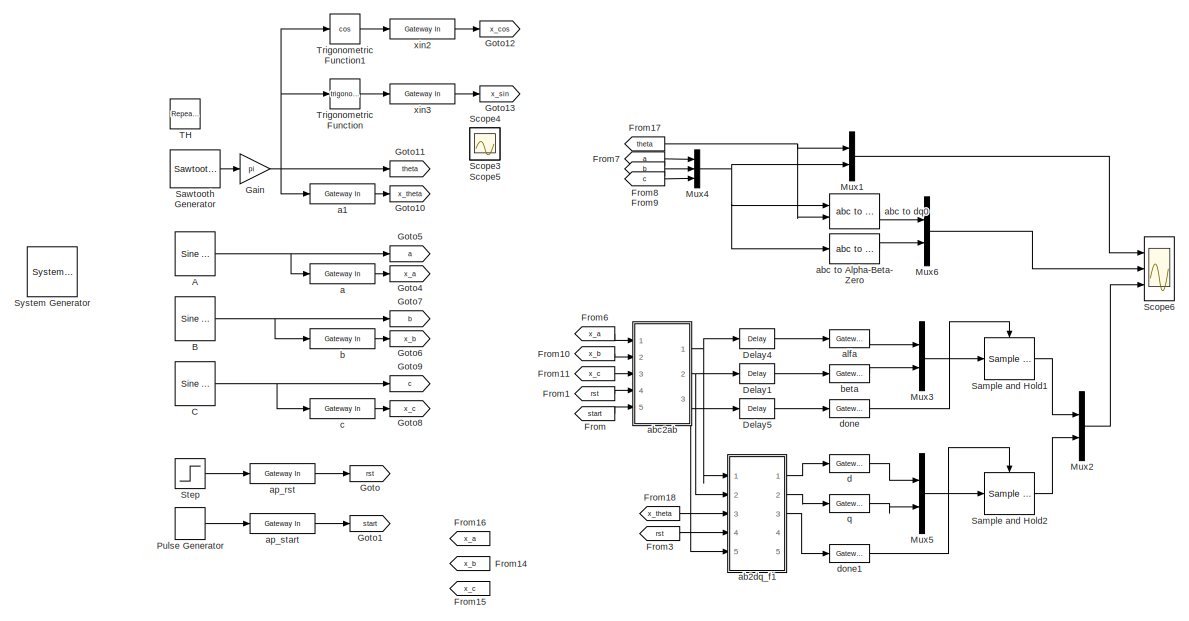
[diagram: root canvas - part 1/4, top center region]
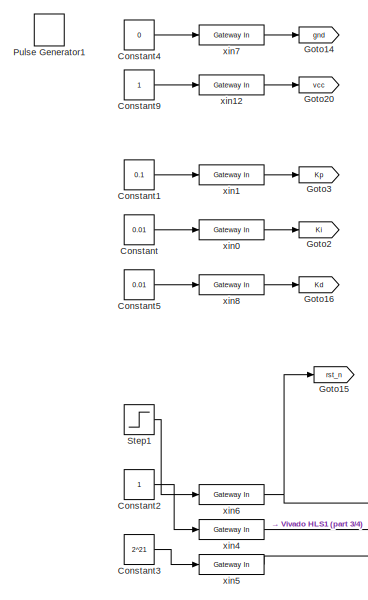
[diagram: root canvas - part 2/4, bottom left region]
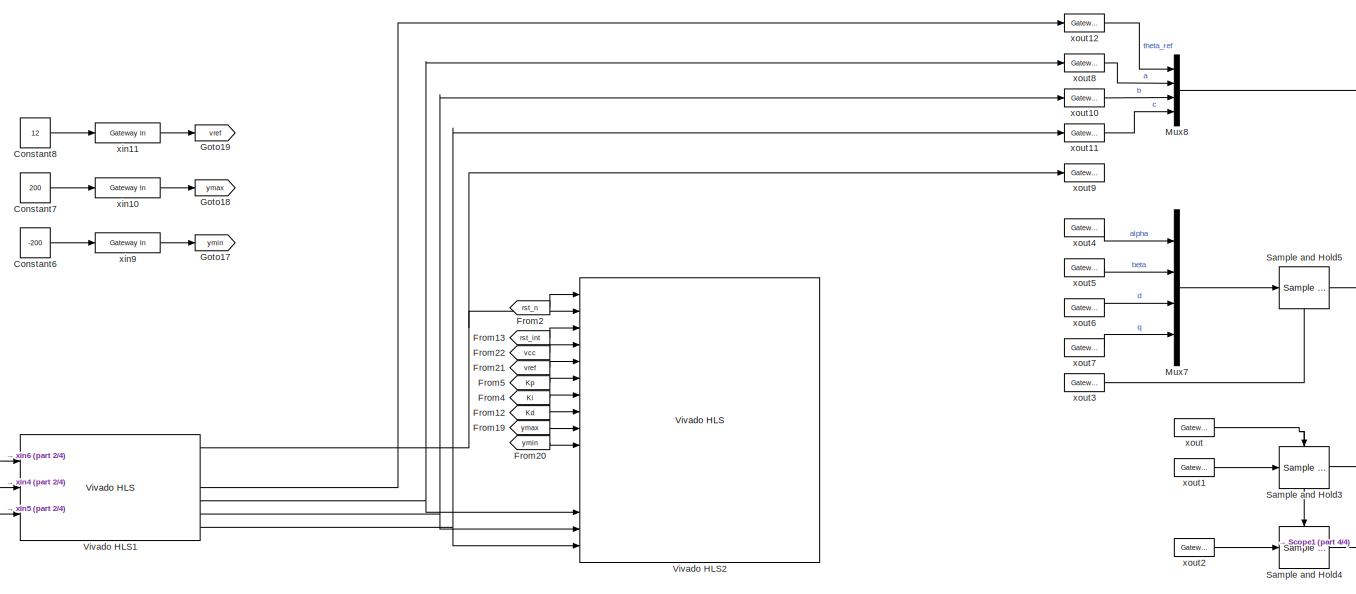
[diagram: root canvas - part 3/4, bottom center region]
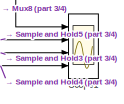
[diagram: root canvas - part 4/4, bottom right region]
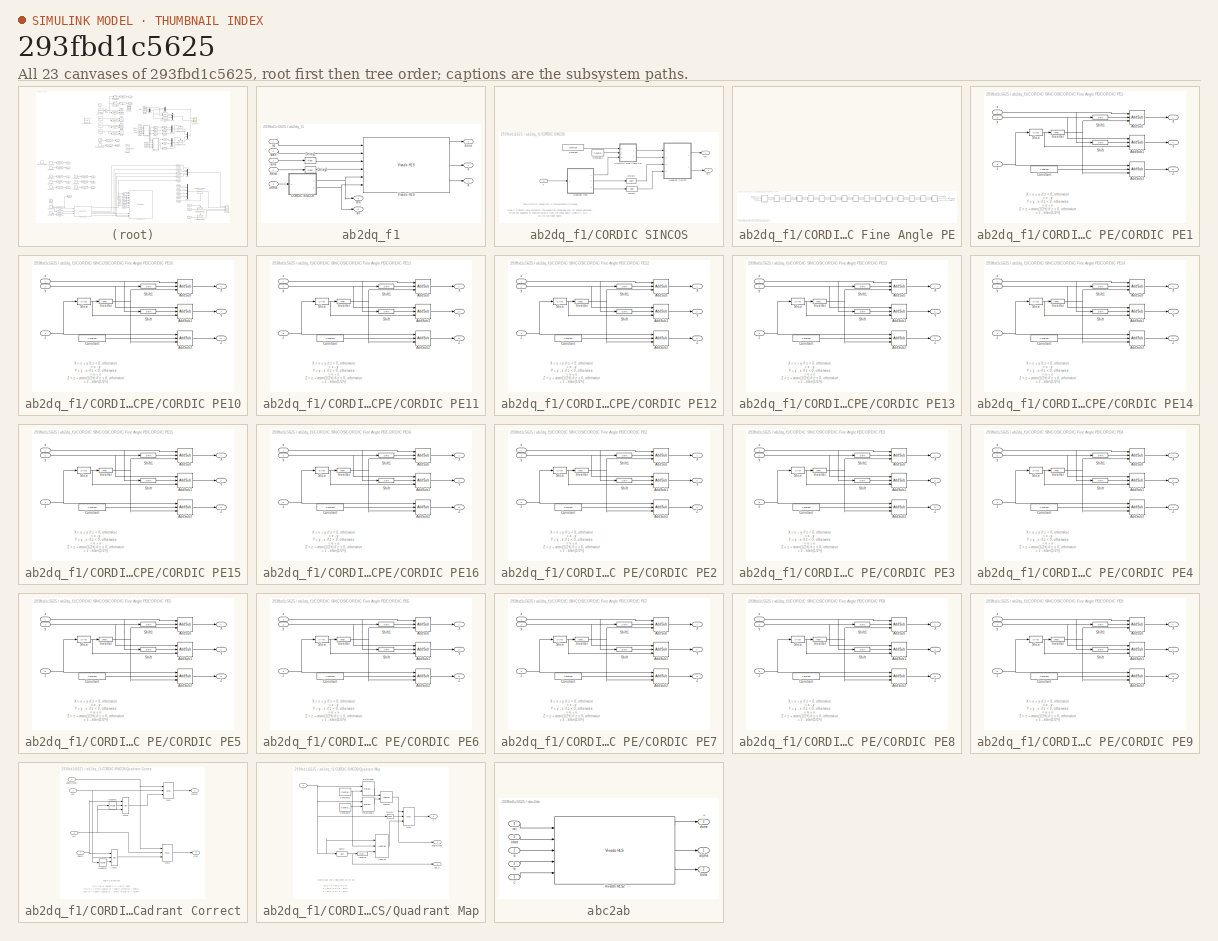
[diagram: thumbnail index - all 23 canvases of the model, root first then tree order]
MODEL slx_293fbd1c5625
KIND model
CONFIG AbsTol = auto
CONFIG FixedStep = auto
CONFIG MaxStep = auto
CONFIG MinStep = auto
CONFIG RelTol = 1e-3
CONFIG SampleTimeConstraint = Unconstrained
CONFIG Solver = ode45
CONFIG SolverMode = Auto
CONFIG SolverName = ode45
CONFIG StartTime = 0.0
CONFIG StopTime = 8000
BLOCK [Reference]  System Generator  REF=xbsIndex_r4/ System Generator
  AttributesFormatString = System\nGenerator
  Ports = []
  SourceBlock = xbsIndex_r4/ System Generator
  SourceType = Xilinx System Generator Block
  Tag = genX
  UserDataPersistent = on
BLOCK [Reference] A  REF=dspsrcs4/Sine Wave
  Ports = [0, 1]
  SourceBlock = dspsrcs4/Sine Wave
  SourceType = Sine Wave
BLOCK [Reference] B  REF=dspsrcs4/Sine Wave
  Ports = [0, 1]
  SourceBlock = dspsrcs4/Sine Wave
  SourceType = Sine Wave
BLOCK [Reference] C  REF=dspsrcs4/Sine Wave
  Ports = [0, 1]
  SourceBlock = dspsrcs4/Sine Wave
  SourceType = Sine Wave
BLOCK [Constant] Constant
  Value = 0.01
BLOCK [Constant] Constant1
  Value = 0.1
BLOCK [Constant] Constant2
BLOCK [Constant] Constant3
  Value = 2^21
BLOCK [Constant] Constant4
  Value = 0
BLOCK [Constant] Constant5
  Value = 0.01
BLOCK [Constant] Constant6
  Value = -200
BLOCK [Constant] Constant7
  Value = 200
BLOCK [Constant] Constant8
  Value = 12
BLOCK [Constant] Constant9
BLOCK [Reference] Delay1  REF=xbsIndex_r4/Delay
  Ports = [1, 1]
  SourceBlock = xbsIndex_r4/Delay
  SourceType = Xilinx Delay Block
BLOCK [Reference] Delay4  REF=xbsIndex_r4/Delay
  Ports = [1, 1]
  SourceBlock = xbsIndex_r4/Delay
  SourceType = Xilinx Delay Block
BLOCK [Reference] Delay5  REF=xbsIndex_r4/Delay
  Ports = [1, 1]
  SourceBlock = xbsIndex_r4/Delay
  SourceType = Xilinx Delay Block
BLOCK [From] From
  GotoTag = start
  IconDisplay = Signal name
BLOCK [From] From1
  GotoTag = rst
  IconDisplay = Signal name
BLOCK [From] From10
  GotoTag = x_b
  IconDisplay = Signal name
BLOCK [From] From11
  GotoTag = x_c
  IconDisplay = Signal name
BLOCK [From] From12
  GotoTag = Kd
  IconDisplay = Signal name
BLOCK [From] From13
  GotoTag = rst_int
  IconDisplay = Signal name
BLOCK [From] From14
  GotoTag = x_b
  IconDisplay = Signal name
BLOCK [From] From15
  GotoTag = x_c
  IconDisplay = Signal name
BLOCK [From] From16
  GotoTag = x_a
  IconDisplay = Signal name
BLOCK [From] From17
  GotoTag = theta
  IconDisplay = Signal name
BLOCK [From] From18
  GotoTag = x_theta
  IconDisplay = Signal name
BLOCK [From] From19
  GotoTag = ymax
  IconDisplay = Signal name
BLOCK [From] From2
  GotoTag = rst_n
  IconDisplay = Signal name
BLOCK [From] From20
  GotoTag = ymin
  IconDisplay = Signal name
BLOCK [From] From21
  GotoTag = vref
  IconDisplay = Signal name
BLOCK [From] From22
  GotoTag = vcc
  IconDisplay = Signal name
BLOCK [From] From3
  GotoTag = rst
  IconDisplay = Signal name
BLOCK [From] From4
  GotoTag = Ki
  IconDisplay = Signal name
BLOCK [From] From5
  GotoTag = Kp
  IconDisplay = Signal name
BLOCK [From] From6
  GotoTag = x_a
  IconDisplay = Signal name
BLOCK [From] From7
  GotoTag = a
  IconDisplay = Signal name
BLOCK [From] From8
  GotoTag = b
  IconDisplay = Signal name
BLOCK [From] From9
  GotoTag = c
  IconDisplay = Signal name
BLOCK [Gain] Gain
  Gain = pi
  OutDataTypeStr = Inherit: Inherit via internal rule
  ParamDataTypeStr = Inherit: Inherit via internal rule
  SaturateOnIntegerOverflow = off
BLOCK [Goto] Goto
  GotoTag = rst
BLOCK [Goto] Goto1
  GotoTag = start
BLOCK [Goto] Goto10
  GotoTag = x_theta
BLOCK [Goto] Goto11
  GotoTag = theta
BLOCK [Goto] Goto12
  GotoTag = x_cos
BLOCK [Goto] Goto13
  GotoTag = x_sin
BLOCK [Goto] Goto14
  GotoTag = gnd
BLOCK [Goto] Goto15
  GotoTag = rst_n
BLOCK [Goto] Goto16
  GotoTag = Kd
BLOCK [Goto] Goto17
  GotoTag = ymin
BLOCK [Goto] Goto18
  GotoTag = ymax
BLOCK [Goto] Goto19
  GotoTag = vref
BLOCK [Goto] Goto2
  GotoTag = Ki
BLOCK [Goto] Goto20
  GotoTag = vcc
BLOCK [Goto] Goto3
  GotoTag = Kp
BLOCK [Goto] Goto4
  GotoTag = x_a
BLOCK [Goto] Goto5
  GotoTag = a
BLOCK [Goto] Goto6
  GotoTag = x_b
BLOCK [Goto] Goto7
  GotoTag = b
BLOCK [Goto] Goto8
  GotoTag = x_c
BLOCK [Goto] Goto9
  GotoTag = c
BLOCK [Mux] Mux1
  DisplayOption = bar
  Inputs = 2
  Ports = [2, 1]
BLOCK [Mux] Mux2
  DisplayOption = bar
  Inputs = 2
  Ports = [2, 1]
BLOCK [Mux] Mux3
  DisplayOption = bar
  Inputs = 2
  Ports = [2, 1]
BLOCK [Mux] Mux4
  DisplayOption = bar
  Inputs = 3
  Ports = [3, 1]
BLOCK [Mux] Mux5
  DisplayOption = bar
  Inputs = 2
  Ports = [2, 1]
BLOCK [Mux] Mux6
  DisplayOption = bar
  Inputs = 2
  Ports = [2, 1]
BLOCK [Mux] Mux7
  DisplayOption = bar
  Ports = [4, 1]
BLOCK [Mux] Mux8
  DisplayOption = bar
  Ports = [4, 1]
BLOCK [DiscretePulseGenerator] Pulse Generator
  Period = 10
  PhaseDelay = 10
  Ports = [0, 1]
BLOCK [DiscretePulseGenerator] Pulse Generator1
  Period = 400
  PhaseDelay = 800
  Ports = [0, 1]
  PulseWidth = 399
BLOCK [Reference] Sample and Hold1  REF=dspsigops/Sample
and Hold
  Ports = [1, 1, 0, 1]
  SourceBlock = dspsigops/Sample\nand Hold
  SourceType = Sample and Hold
BLOCK [Reference] Sample and Hold2  REF=dspsigops/Sample
and Hold
  Ports = [1, 1, 0, 1]
  SourceBlock = dspsigops/Sample\nand Hold
  SourceType = Sample and Hold
BLOCK [Reference] Sample and Hold3  REF=dspsigops/Sample
and Hold
  Ports = [1, 1, 0, 1]
  SourceBlock = dspsigops/Sample\nand Hold
  SourceType = Sample and Hold
BLOCK [Reference] Sample and Hold4  REF=dspsigops/Sample
and Hold
  Ports = [1, 1, 0, 1]
  SourceBlock = dspsigops/Sample\nand Hold
  SourceType = Sample and Hold
BLOCK [Reference] Sample and Hold5  REF=dspsigops/Sample
and Hold
  Ports = [1, 1, 0, 1]
  SourceBlock = dspsigops/Sample\nand Hold
  SourceType = Sample and Hold
BLOCK [Reference] Sawtooth Generator  REF=powerlib_meascontrol/Pulse & Signal
Generators/Sawtooth
Generator
  Ports = [0, 1]
  SourceBlock = powerlib_meascontrol/Pulse & Signal\nGenerators/Sawtooth\nGenerator
  SourceType = Sawtooth Generator
BLOCK [Scope] Scope1
  NumInputPorts = 4
  Ports = [4]
  ScopeSpecificationString = Simulink.scopes.TimeScopeBlockCfg('CurrentConfiguration', extmgr.ConfigurationSet(extmgr.Configuration('Core','General UI',true,'FigureColor',[0.156862745098039 0.156862745098039 0.156862745098039]),extmgr.Configuration('Core','Source UI',true),extmgr.Configuration('Sources','WiredSimulink',true,'DataLoggingSaveFormat','StructureWithTime','DataLoggingDecimation','1','DataLoggingDecimateData',true,...<+4170ch>
BLOCK [Scope] Scope3
  IOType = viewer
  Ports = []
  ScopeSpecificationString = Simulink.scopes.TimeScopeBlockCfg('CurrentConfiguration', extmgr.ConfigurationSet(extmgr.Configuration('Core','General UI',true),extmgr.Configuration('Core','Source UI',true),extmgr.Configuration('Sources','WiredSimulink',true,'DataLoggingVariableName','ScopeData1'),extmgr.Configuration('Visuals','Time Domain',true,'SerializedDisplays',{struct('MinYLimReal','-3.92622','MaxYLimReal','3.92009','YLab...<+1700ch>
BLOCK [Scope] Scope4
  IOType = viewer
  Ports = []
  ScopeSpecificationString = Simulink.scopes.TimeScopeBlockCfg('CurrentConfiguration', extmgr.ConfigurationSet(extmgr.Configuration('Core','General UI',true),extmgr.Configuration('Core','Source UI',true),extmgr.Configuration('Sources','WiredSimulink',true,'DataLoggingVariableName','ScopeData2'),extmgr.Configuration('Visuals','Time Domain',true,'SerializedDisplays',{struct('MinYLimReal','-1.25','MaxYLimReal','1.25','YLabelReal...<+1371ch>
BLOCK [Scope] Scope5
  IOType = viewer
  Ports = []
  ScopeSpecificationString = Simulink.scopes.TimeScopeBlockCfg('CurrentConfiguration', extmgr.ConfigurationSet(extmgr.Configuration('Core','General UI',true),extmgr.Configuration('Core','Source UI',true),extmgr.Configuration('Sources','WiredSimulink',true,'DataLoggingVariableName','ScopeData3'),extmgr.Configuration('Visuals','Time Domain',true,'SerializedDisplays',{struct('MinYLimReal','-1.25','MaxYLimReal','1.25','YLabelReal...<+1371ch>
BLOCK [Scope] Scope6
  NumInputPorts = 3
  Ports = [3]
  ScopeSpecificationString = Simulink.scopes.TimeScopeBlockCfg('CurrentConfiguration', extmgr.ConfigurationSet(extmgr.Configuration('Core','General UI',true,'FigureColor',[0.156862745098039 0.156862745098039 0.156862745098039]),extmgr.Configuration('Core','Source UI',true),extmgr.Configuration('Sources','WiredSimulink',true,'DataLoggingSaveFormat','StructureWithTime','DataLoggingDecimation','1','DataLoggingDecimateData',true,...<+4649ch>
BLOCK [Step] Step
  After = 0
  Before = 1
  SampleTime = 0
BLOCK [Step] Step1
  SampleTime = 0
BLOCK [Reference] TH  REF=simulink/Sources/Repeating
Sequence
  Ports = [0, 1]
  SourceBlock = simulink/Sources/Repeating\nSequence
  SourceType = Repeating table
BLOCK [Trigonometry] Trigonometric Function
  Ports = [1, 1]
BLOCK [Trigonometry] Trigonometric Function1
  Operator = cos
  Ports = [1, 1]
BLOCK [Reference] Vivado HLS1  REF=xbsIndex_r4/Vivado HLS
  Ports = [3, 7]
  SourceBlock = xbsIndex_r4/Vivado HLS
  SourceType = Xilinx High Level Synthesis Block
BLOCK [Reference] Vivado HLS2  REF=xbsIndex_r4/Vivado HLS
  Ports = [16, 6]
  SourceBlock = xbsIndex_r4/Vivado HLS
  SourceType = Xilinx High Level Synthesis Block
BLOCK [Reference] a  REF=xbsIndex_r4/Gateway In
  Ports = [1, 1]
  SourceBlock = xbsIndex_r4/Gateway In
  SourceType = Xilinx Gateway In Block
BLOCK [Reference] a1  REF=xbsIndex_r4/Gateway In
  Ports = [1, 1]
  SourceBlock = xbsIndex_r4/Gateway In
  SourceType = Xilinx Gateway In Block
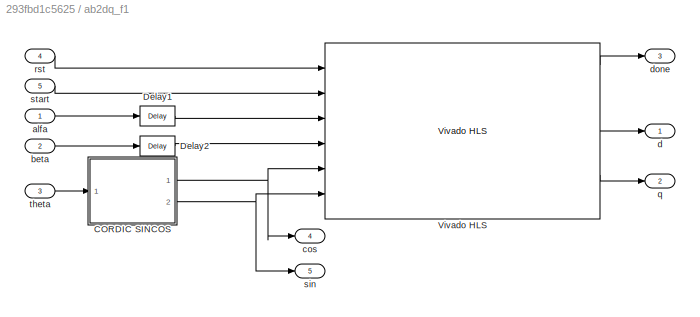
BLOCK [SubSystem] ab2dq_f1
  Ports = [5, 5]
  RequestExecContextInheritance = off
  Variant = off
BLOCK [SubSystem] ab2dq_f1/CORDIC SINCOS
  CopyFcn = set_param(gcb, 'MaskSelfModifiable', 'on', 'LinkStatus', 'none');
  Ports = [1, 2]
  RequestExecContextInheritance = off
  Variant = off
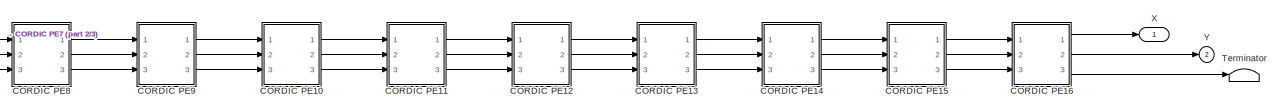
[diagram: ab2dq_f1/CORDIC SINCOS/CORDIC Fine Angle PE - part 1/3, top right region]
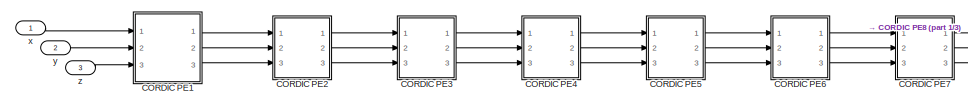
[diagram: ab2dq_f1/CORDIC SINCOS/CORDIC Fine Angle PE - part 2/3, top left region]
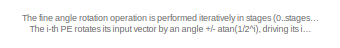
[diagram: ab2dq_f1/CORDIC SINCOS/CORDIC Fine Angle PE - part 3/3, bottom left region]
BLOCK [SubSystem] ab2dq_f1/CORDIC SINCOS/CORDIC Fine Angle PE
  Ports = [3, 2]
  RequestExecContextInheritance = off
  Variant = off
BLOCK [SubSystem] ab2dq_f1/CORDIC SINCOS/CORDIC Fine Angle PE/CORDIC PE1
  Ports = [3, 3]
  RequestExecContextInheritance = off
  Variant = off
BLOCK [Reference] ab2dq_f1/CORDIC SINCOS/CORDIC Fine Angle PE/CORDIC PE1/AddSub  REF=xbsIndex_r4/AddSub
  Ports = [3, 1]
  SourceBlock = xbsIndex_r4/AddSub
  SourceType = Xilinx Adder/Subtracter Block
BLOCK [Reference] ab2dq_f1/CORDIC SINCOS/CORDIC Fine Angle PE/CORDIC PE1/AddSub1  REF=xbsIndex_r4/AddSub
  Ports = [3, 1]
  SourceBlock = xbsIndex_r4/AddSub
  SourceType = Xilinx Adder/Subtracter Block
BLOCK [Reference] ab2dq_f1/CORDIC SINCOS/CORDIC Fine Angle PE/CORDIC PE1/AddSub2  REF=xbsIndex_r4/AddSub
  Ports = [3, 1]
  SourceBlock = xbsIndex_r4/AddSub
  SourceType = Xilinx Adder/Subtracter Block
BLOCK [Reference] ab2dq_f1/CORDIC SINCOS/CORDIC Fine Angle PE/CORDIC PE1/Constant  REF=xbsIndex_r4/Constant
  Ports = [0, 1]
  SourceBlock = xbsIndex_r4/Constant
  SourceType = Xilinx Constant Block Block
BLOCK [Reference] ab2dq_f1/CORDIC SINCOS/CORDIC Fine Angle PE/CORDIC PE1/Inverter  REF=xbsIndex_r4/Inverter
  Ports = [1, 1]
  SourceBlock = xbsIndex_r4/Inverter
  SourceType = Xilinx Inverter Block
BLOCK [Reference] ab2dq_f1/CORDIC SINCOS/CORDIC Fine Angle PE/CORDIC PE1/Shift  REF=xbsIndex_r4/Shift
  Ports = [1, 1]
  SourceBlock = xbsIndex_r4/Shift
  SourceType = Xilinx Binary Shift Operator Block
BLOCK [Reference] ab2dq_f1/CORDIC SINCOS/CORDIC Fine Angle PE/CORDIC PE1/Shift1  REF=xbsIndex_r4/Shift
  Ports = [1, 1]
  SourceBlock = xbsIndex_r4/Shift
  SourceType = Xilinx Binary Shift Operator Block
BLOCK [Reference] ab2dq_f1/CORDIC SINCOS/CORDIC Fine Angle PE/CORDIC PE1/Slice  REF=xbsIndex_r4/Slice
  Ports = [1, 1]
  SourceBlock = xbsIndex_r4/Slice
  SourceType = Xilinx Bit Slice Extractor Block
BLOCK [Outport] ab2dq_f1/CORDIC SINCOS/CORDIC Fine Angle PE/CORDIC PE1/X
  IconDisplay = Port number
BLOCK [Outport] ab2dq_f1/CORDIC SINCOS/CORDIC Fine Angle PE/CORDIC PE1/Y
  IconDisplay = Port number
  Port = 2
BLOCK [Outport] ab2dq_f1/CORDIC SINCOS/CORDIC Fine Angle PE/CORDIC PE1/Z
  IconDisplay = Port number
  Port = 3
BLOCK [Inport] ab2dq_f1/CORDIC SINCOS/CORDIC Fine Angle PE/CORDIC PE1/x
  IconDisplay = Port number
BLOCK [Inport] ab2dq_f1/CORDIC SINCOS/CORDIC Fine Angle PE/CORDIC PE1/y
  IconDisplay = Port number
  Port = 2
BLOCK [Inport] ab2dq_f1/CORDIC SINCOS/CORDIC Fine Angle PE/CORDIC PE1/z
  IconDisplay = Port number
  Port = 3
BLOCK [SubSystem] ab2dq_f1/CORDIC SINCOS/CORDIC Fine Angle PE/CORDIC PE10
  Ports = [3, 3]
  RequestExecContextInheritance = off
  Variant = off
BLOCK [Reference] ab2dq_f1/CORDIC SINCOS/CORDIC Fine Angle PE/CORDIC PE10/AddSub  REF=xbsIndex_r4/AddSub
  Ports = [3, 1]
  SourceBlock = xbsIndex_r4/AddSub
  SourceType = Xilinx Adder/Subtracter Block
BLOCK [Reference] ab2dq_f1/CORDIC SINCOS/CORDIC Fine Angle PE/CORDIC PE10/AddSub1  REF=xbsIndex_r4/AddSub
  Ports = [3, 1]
  SourceBlock = xbsIndex_r4/AddSub
  SourceType = Xilinx Adder/Subtracter Block
BLOCK [Reference] ab2dq_f1/CORDIC SINCOS/CORDIC Fine Angle PE/CORDIC PE10/AddSub2  REF=xbsIndex_r4/AddSub
  Ports = [3, 1]
  SourceBlock = xbsIndex_r4/AddSub
  SourceType = Xilinx Adder/Subtracter Block
BLOCK [Reference] ab2dq_f1/CORDIC SINCOS/CORDIC Fine Angle PE/CORDIC PE10/Constant  REF=xbsIndex_r4/Constant
  Ports = [0, 1]
  SourceBlock = xbsIndex_r4/Constant
  SourceType = Xilinx Constant Block Block
BLOCK [Reference] ab2dq_f1/CORDIC SINCOS/CORDIC Fine Angle PE/CORDIC PE10/Inverter  REF=xbsIndex_r4/Inverter
  Ports = [1, 1]
  SourceBlock = xbsIndex_r4/Inverter
  SourceType = Xilinx Inverter Block
BLOCK [Reference] ab2dq_f1/CORDIC SINCOS/CORDIC Fine Angle PE/CORDIC PE10/Shift  REF=xbsIndex_r4/Shift
  Ports = [1, 1]
  SourceBlock = xbsIndex_r4/Shift
  SourceType = Xilinx Binary Shift Operator Block
BLOCK [Reference] ab2dq_f1/CORDIC SINCOS/CORDIC Fine Angle PE/CORDIC PE10/Shift1  REF=xbsIndex_r4/Shift
  Ports = [1, 1]
  SourceBlock = xbsIndex_r4/Shift
  SourceType = Xilinx Binary Shift Operator Block
BLOCK [Reference] ab2dq_f1/CORDIC SINCOS/CORDIC Fine Angle PE/CORDIC PE10/Slice  REF=xbsIndex_r4/Slice
  Ports = [1, 1]
  SourceBlock = xbsIndex_r4/Slice
  SourceType = Xilinx Bit Slice Extractor Block
BLOCK [Outport] ab2dq_f1/CORDIC SINCOS/CORDIC Fine Angle PE/CORDIC PE10/X
  IconDisplay = Port number
BLOCK [Outport] ab2dq_f1/CORDIC SINCOS/CORDIC Fine Angle PE/CORDIC PE10/Y
  IconDisplay = Port number
  Port = 2
BLOCK [Outport] ab2dq_f1/CORDIC SINCOS/CORDIC Fine Angle PE/CORDIC PE10/Z
  IconDisplay = Port number
  Port = 3
BLOCK [Inport] ab2dq_f1/CORDIC SINCOS/CORDIC Fine Angle PE/CORDIC PE10/x
  IconDisplay = Port number
BLOCK [Inport] ab2dq_f1/CORDIC SINCOS/CORDIC Fine Angle PE/CORDIC PE10/y
  IconDisplay = Port number
  Port = 2
BLOCK [Inport] ab2dq_f1/CORDIC SINCOS/CORDIC Fine Angle PE/CORDIC PE10/z
  IconDisplay = Port number
  Port = 3
BLOCK [SubSystem] ab2dq_f1/CORDIC SINCOS/CORDIC Fine Angle PE/CORDIC PE11
  Ports = [3, 3]
  RequestExecContextInheritance = off
  Variant = off
BLOCK [Reference] ab2dq_f1/CORDIC SINCOS/CORDIC Fine Angle PE/CORDIC PE11/AddSub  REF=xbsIndex_r4/AddSub
  Ports = [3, 1]
  SourceBlock = xbsIndex_r4/AddSub
  SourceType = Xilinx Adder/Subtracter Block
BLOCK [Reference] ab2dq_f1/CORDIC SINCOS/CORDIC Fine Angle PE/CORDIC PE11/AddSub1  REF=xbsIndex_r4/AddSub
  Ports = [3, 1]
  SourceBlock = xbsIndex_r4/AddSub
  SourceType = Xilinx Adder/Subtracter Block
BLOCK [Reference] ab2dq_f1/CORDIC SINCOS/CORDIC Fine Angle PE/CORDIC PE11/AddSub2  REF=xbsIndex_r4/AddSub
  Ports = [3, 1]
  SourceBlock = xbsIndex_r4/AddSub
  SourceType = Xilinx Adder/Subtracter Block
BLOCK [Reference] ab2dq_f1/CORDIC SINCOS/CORDIC Fine Angle PE/CORDIC PE11/Constant  REF=xbsIndex_r4/Constant
  Ports = [0, 1]
  SourceBlock = xbsIndex_r4/Constant
  SourceType = Xilinx Constant Block Block
BLOCK [Reference] ab2dq_f1/CORDIC SINCOS/CORDIC Fine Angle PE/CORDIC PE11/Inverter  REF=xbsIndex_r4/Inverter
  Ports = [1, 1]
  SourceBlock = xbsIndex_r4/Inverter
  SourceType = Xilinx Inverter Block
BLOCK [Reference] ab2dq_f1/CORDIC SINCOS/CORDIC Fine Angle PE/CORDIC PE11/Shift  REF=xbsIndex_r4/Shift
  Ports = [1, 1]
  SourceBlock = xbsIndex_r4/Shift
  SourceType = Xilinx Binary Shift Operator Block
BLOCK [Reference] ab2dq_f1/CORDIC SINCOS/CORDIC Fine Angle PE/CORDIC PE11/Shift1  REF=xbsIndex_r4/Shift
  Ports = [1, 1]
  SourceBlock = xbsIndex_r4/Shift
  SourceType = Xilinx Binary Shift Operator Block
BLOCK [Reference] ab2dq_f1/CORDIC SINCOS/CORDIC Fine Angle PE/CORDIC PE11/Slice  REF=xbsIndex_r4/Slice
  Ports = [1, 1]
  SourceBlock = xbsIndex_r4/Slice
  SourceType = Xilinx Bit Slice Extractor Block
BLOCK [Outport] ab2dq_f1/CORDIC SINCOS/CORDIC Fine Angle PE/CORDIC PE11/X
  IconDisplay = Port number
BLOCK [Outport] ab2dq_f1/CORDIC SINCOS/CORDIC Fine Angle PE/CORDIC PE11/Y
  IconDisplay = Port number
  Port = 2
BLOCK [Outport] ab2dq_f1/CORDIC SINCOS/CORDIC Fine Angle PE/CORDIC PE11/Z
  IconDisplay = Port number
  Port = 3
BLOCK [Inport] ab2dq_f1/CORDIC SINCOS/CORDIC Fine Angle PE/CORDIC PE11/x
  IconDisplay = Port number
BLOCK [Inport] ab2dq_f1/CORDIC SINCOS/CORDIC Fine Angle PE/CORDIC PE11/y
  IconDisplay = Port number
  Port = 2
BLOCK [Inport] ab2dq_f1/CORDIC SINCOS/CORDIC Fine Angle PE/CORDIC PE11/z
  IconDisplay = Port number
  Port = 3
BLOCK [SubSystem] ab2dq_f1/CORDIC SINCOS/CORDIC Fine Angle PE/CORDIC PE12
  Ports = [3, 3]
  RequestExecContextInheritance = off
  Variant = off
BLOCK [Reference] ab2dq_f1/CORDIC SINCOS/CORDIC Fine Angle PE/CORDIC PE12/AddSub  REF=xbsIndex_r4/AddSub
  Ports = [3, 1]
  SourceBlock = xbsIndex_r4/AddSub
  SourceType = Xilinx Adder/Subtracter Block
BLOCK [Reference] ab2dq_f1/CORDIC SINCOS/CORDIC Fine Angle PE/CORDIC PE12/AddSub1  REF=xbsIndex_r4/AddSub
  Ports = [3, 1]
  SourceBlock = xbsIndex_r4/AddSub
  SourceType = Xilinx Adder/Subtracter Block
BLOCK [Reference] ab2dq_f1/CORDIC SINCOS/CORDIC Fine Angle PE/CORDIC PE12/AddSub2  REF=xbsIndex_r4/AddSub
  Ports = [3, 1]
  SourceBlock = xbsIndex_r4/AddSub
  SourceType = Xilinx Adder/Subtracter Block
BLOCK [Reference] ab2dq_f1/CORDIC SINCOS/CORDIC Fine Angle PE/CORDIC PE12/Constant  REF=xbsIndex_r4/Constant
  Ports = [0, 1]
  SourceBlock = xbsIndex_r4/Constant
  SourceType = Xilinx Constant Block Block
BLOCK [Reference] ab2dq_f1/CORDIC SINCOS/CORDIC Fine Angle PE/CORDIC PE12/Inverter  REF=xbsIndex_r4/Inverter
  Ports = [1, 1]
  SourceBlock = xbsIndex_r4/Inverter
  SourceType = Xilinx Inverter Block
BLOCK [Reference] ab2dq_f1/CORDIC SINCOS/CORDIC Fine Angle PE/CORDIC PE12/Shift  REF=xbsIndex_r4/Shift
  Ports = [1, 1]
  SourceBlock = xbsIndex_r4/Shift
  SourceType = Xilinx Binary Shift Operator Block
BLOCK [Reference] ab2dq_f1/CORDIC SINCOS/CORDIC Fine Angle PE/CORDIC PE12/Shift1  REF=xbsIndex_r4/Shift
  Ports = [1, 1]
  SourceBlock = xbsIndex_r4/Shift
  SourceType = Xilinx Binary Shift Operator Block
BLOCK [Reference] ab2dq_f1/CORDIC SINCOS/CORDIC Fine Angle PE/CORDIC PE12/Slice  REF=xbsIndex_r4/Slice
  Ports = [1, 1]
  SourceBlock = xbsIndex_r4/Slice
  SourceType = Xilinx Bit Slice Extractor Block
BLOCK [Outport] ab2dq_f1/CORDIC SINCOS/CORDIC Fine Angle PE/CORDIC PE12/X
  IconDisplay = Port number
BLOCK [Outport] ab2dq_f1/CORDIC SINCOS/CORDIC Fine Angle PE/CORDIC PE12/Y
  IconDisplay = Port number
  Port = 2
BLOCK [Outport] ab2dq_f1/CORDIC SINCOS/CORDIC Fine Angle PE/CORDIC PE12/Z
  IconDisplay = Port number
  Port = 3
BLOCK [Inport] ab2dq_f1/CORDIC SINCOS/CORDIC Fine Angle PE/CORDIC PE12/x
  IconDisplay = Port number
BLOCK [Inport] ab2dq_f1/CORDIC SINCOS/CORDIC Fine Angle PE/CORDIC PE12/y
  IconDisplay = Port number
  Port = 2
BLOCK [Inport] ab2dq_f1/CORDIC SINCOS/CORDIC Fine Angle PE/CORDIC PE12/z
  IconDisplay = Port number
  Port = 3
BLOCK [SubSystem] ab2dq_f1/CORDIC SINCOS/CORDIC Fine Angle PE/CORDIC PE13
  Ports = [3, 3]
  RequestExecContextInheritance = off
  Variant = off
BLOCK [Reference] ab2dq_f1/CORDIC SINCOS/CORDIC Fine Angle PE/CORDIC PE13/AddSub  REF=xbsIndex_r4/AddSub
  Ports = [3, 1]
  SourceBlock = xbsIndex_r4/AddSub
  SourceType = Xilinx Adder/Subtracter Block
BLOCK [Reference] ab2dq_f1/CORDIC SINCOS/CORDIC Fine Angle PE/CORDIC PE13/AddSub1  REF=xbsIndex_r4/AddSub
  Ports = [3, 1]
  SourceBlock = xbsIndex_r4/AddSub
  SourceType = Xilinx Adder/Subtracter Block
BLOCK [Reference] ab2dq_f1/CORDIC SINCOS/CORDIC Fine Angle PE/CORDIC PE13/AddSub2  REF=xbsIndex_r4/AddSub
  Ports = [3, 1]
  SourceBlock = xbsIndex_r4/AddSub
  SourceType = Xilinx Adder/Subtracter Block
BLOCK [Reference] ab2dq_f1/CORDIC SINCOS/CORDIC Fine Angle PE/CORDIC PE13/Constant  REF=xbsIndex_r4/Constant
  Ports = [0, 1]
  SourceBlock = xbsIndex_r4/Constant
  SourceType = Xilinx Constant Block Block
BLOCK [Reference] ab2dq_f1/CORDIC SINCOS/CORDIC Fine Angle PE/CORDIC PE13/Inverter  REF=xbsIndex_r4/Inverter
  Ports = [1, 1]
  SourceBlock = xbsIndex_r4/Inverter
  SourceType = Xilinx Inverter Block
BLOCK [Reference] ab2dq_f1/CORDIC SINCOS/CORDIC Fine Angle PE/CORDIC PE13/Shift  REF=xbsIndex_r4/Shift
  Ports = [1, 1]
  SourceBlock = xbsIndex_r4/Shift
  SourceType = Xilinx Binary Shift Operator Block
BLOCK [Reference] ab2dq_f1/CORDIC SINCOS/CORDIC Fine Angle PE/CORDIC PE13/Shift1  REF=xbsIndex_r4/Shift
  Ports = [1, 1]
  SourceBlock = xbsIndex_r4/Shift
  SourceType = Xilinx Binary Shift Operator Block
BLOCK [Reference] ab2dq_f1/CORDIC SINCOS/CORDIC Fine Angle PE/CORDIC PE13/Slice  REF=xbsIndex_r4/Slice
  Ports = [1, 1]
  SourceBlock = xbsIndex_r4/Slice
  SourceType = Xilinx Bit Slice Extractor Block
BLOCK [Outport] ab2dq_f1/CORDIC SINCOS/CORDIC Fine Angle PE/CORDIC PE13/X
  IconDisplay = Port number
BLOCK [Outport] ab2dq_f1/CORDIC SINCOS/CORDIC Fine Angle PE/CORDIC PE13/Y
  IconDisplay = Port number
  Port = 2
BLOCK [Outport] ab2dq_f1/CORDIC SINCOS/CORDIC Fine Angle PE/CORDIC PE13/Z
  IconDisplay = Port number
  Port = 3
BLOCK [Inport] ab2dq_f1/CORDIC SINCOS/CORDIC Fine Angle PE/CORDIC PE13/x
  IconDisplay = Port number
BLOCK [Inport] ab2dq_f1/CORDIC SINCOS/CORDIC Fine Angle PE/CORDIC PE13/y
  IconDisplay = Port number
  Port = 2
BLOCK [Inport] ab2dq_f1/CORDIC SINCOS/CORDIC Fine Angle PE/CORDIC PE13/z
  IconDisplay = Port number
  Port = 3
BLOCK [SubSystem] ab2dq_f1/CORDIC SINCOS/CORDIC Fine Angle PE/CORDIC PE14
  Ports = [3, 3]
  RequestExecContextInheritance = off
  Variant = off
BLOCK [Reference] ab2dq_f1/CORDIC SINCOS/CORDIC Fine Angle PE/CORDIC PE14/AddSub  REF=xbsIndex_r4/AddSub
  Ports = [3, 1]
  SourceBlock = xbsIndex_r4/AddSub
  SourceType = Xilinx Adder/Subtracter Block
BLOCK [Reference] ab2dq_f1/CORDIC SINCOS/CORDIC Fine Angle PE/CORDIC PE14/AddSub1  REF=xbsIndex_r4/AddSub
  Ports = [3, 1]
  SourceBlock = xbsIndex_r4/AddSub
  SourceType = Xilinx Adder/Subtracter Block
BLOCK [Reference] ab2dq_f1/CORDIC SINCOS/CORDIC Fine Angle PE/CORDIC PE14/AddSub2  REF=xbsIndex_r4/AddSub
  Ports = [3, 1]
  SourceBlock = xbsIndex_r4/AddSub
  SourceType = Xilinx Adder/Subtracter Block
BLOCK [Reference] ab2dq_f1/CORDIC SINCOS/CORDIC Fine Angle PE/CORDIC PE14/Constant  REF=xbsIndex_r4/Constant
  Ports = [0, 1]
  SourceBlock = xbsIndex_r4/Constant
  SourceType = Xilinx Constant Block Block
BLOCK [Reference] ab2dq_f1/CORDIC SINCOS/CORDIC Fine Angle PE/CORDIC PE14/Inverter  REF=xbsIndex_r4/Inverter
  Ports = [1, 1]
  SourceBlock = xbsIndex_r4/Inverter
  SourceType = Xilinx Inverter Block
BLOCK [Reference] ab2dq_f1/CORDIC SINCOS/CORDIC Fine Angle PE/CORDIC PE14/Shift  REF=xbsIndex_r4/Shift
  Ports = [1, 1]
  SourceBlock = xbsIndex_r4/Shift
  SourceType = Xilinx Binary Shift Operator Block
BLOCK [Reference] ab2dq_f1/CORDIC SINCOS/CORDIC Fine Angle PE/CORDIC PE14/Shift1  REF=xbsIndex_r4/Shift
  Ports = [1, 1]
  SourceBlock = xbsIndex_r4/Shift
  SourceType = Xilinx Binary Shift Operator Block
BLOCK [Reference] ab2dq_f1/CORDIC SINCOS/CORDIC Fine Angle PE/CORDIC PE14/Slice  REF=xbsIndex_r4/Slice
  Ports = [1, 1]
  SourceBlock = xbsIndex_r4/Slice
  SourceType = Xilinx Bit Slice Extractor Block
BLOCK [Outport] ab2dq_f1/CORDIC SINCOS/CORDIC Fine Angle PE/CORDIC PE14/X
  IconDisplay = Port number
BLOCK [Outport] ab2dq_f1/CORDIC SINCOS/CORDIC Fine Angle PE/CORDIC PE14/Y
  IconDisplay = Port number
  Port = 2
BLOCK [Outport] ab2dq_f1/CORDIC SINCOS/CORDIC Fine Angle PE/CORDIC PE14/Z
  IconDisplay = Port number
  Port = 3
BLOCK [Inport] ab2dq_f1/CORDIC SINCOS/CORDIC Fine Angle PE/CORDIC PE14/x
  IconDisplay = Port number
BLOCK [Inport] ab2dq_f1/CORDIC SINCOS/CORDIC Fine Angle PE/CORDIC PE14/y
  IconDisplay = Port number
  Port = 2
BLOCK [Inport] ab2dq_f1/CORDIC SINCOS/CORDIC Fine Angle PE/CORDIC PE14/z
  IconDisplay = Port number
  Port = 3
BLOCK [SubSystem] ab2dq_f1/CORDIC SINCOS/CORDIC Fine Angle PE/CORDIC PE15
  Ports = [3, 3]
  RequestExecContextInheritance = off
  Variant = off
BLOCK [Reference] ab2dq_f1/CORDIC SINCOS/CORDIC Fine Angle PE/CORDIC PE15/AddSub  REF=xbsIndex_r4/AddSub
  Ports = [3, 1]
  SourceBlock = xbsIndex_r4/AddSub
  SourceType = Xilinx Adder/Subtracter Block
BLOCK [Reference] ab2dq_f1/CORDIC SINCOS/CORDIC Fine Angle PE/CORDIC PE15/AddSub1  REF=xbsIndex_r4/AddSub
  Ports = [3, 1]
  SourceBlock = xbsIndex_r4/AddSub
  SourceType = Xilinx Adder/Subtracter Block
BLOCK [Reference] ab2dq_f1/CORDIC SINCOS/CORDIC Fine Angle PE/CORDIC PE15/AddSub2  REF=xbsIndex_r4/AddSub
  Ports = [3, 1]
  SourceBlock = xbsIndex_r4/AddSub
  SourceType = Xilinx Adder/Subtracter Block
BLOCK [Reference] ab2dq_f1/CORDIC SINCOS/CORDIC Fine Angle PE/CORDIC PE15/Constant  REF=xbsIndex_r4/Constant
  Ports = [0, 1]
  SourceBlock = xbsIndex_r4/Constant
  SourceType = Xilinx Constant Block Block
BLOCK [Reference] ab2dq_f1/CORDIC SINCOS/CORDIC Fine Angle PE/CORDIC PE15/Inverter  REF=xbsIndex_r4/Inverter
  Ports = [1, 1]
  SourceBlock = xbsIndex_r4/Inverter
  SourceType = Xilinx Inverter Block
BLOCK [Reference] ab2dq_f1/CORDIC SINCOS/CORDIC Fine Angle PE/CORDIC PE15/Shift  REF=xbsIndex_r4/Shift
  Ports = [1, 1]
  SourceBlock = xbsIndex_r4/Shift
  SourceType = Xilinx Binary Shift Operator Block
BLOCK [Reference] ab2dq_f1/CORDIC SINCOS/CORDIC Fine Angle PE/CORDIC PE15/Shift1  REF=xbsIndex_r4/Shift
  Ports = [1, 1]
  SourceBlock = xbsIndex_r4/Shift
  SourceType = Xilinx Binary Shift Operator Block
BLOCK [Reference] ab2dq_f1/CORDIC SINCOS/CORDIC Fine Angle PE/CORDIC PE15/Slice  REF=xbsIndex_r4/Slice
  Ports = [1, 1]
  SourceBlock = xbsIndex_r4/Slice
  SourceType = Xilinx Bit Slice Extractor Block
BLOCK [Outport] ab2dq_f1/CORDIC SINCOS/CORDIC Fine Angle PE/CORDIC PE15/X
  IconDisplay = Port number
BLOCK [Outport] ab2dq_f1/CORDIC SINCOS/CORDIC Fine Angle PE/CORDIC PE15/Y
  IconDisplay = Port number
  Port = 2
BLOCK [Outport] ab2dq_f1/CORDIC SINCOS/CORDIC Fine Angle PE/CORDIC PE15/Z
  IconDisplay = Port number
  Port = 3
BLOCK [Inport] ab2dq_f1/CORDIC SINCOS/CORDIC Fine Angle PE/CORDIC PE15/x
  IconDisplay = Port number
BLOCK [Inport] ab2dq_f1/CORDIC SINCOS/CORDIC Fine Angle PE/CORDIC PE15/y
  IconDisplay = Port number
  Port = 2
BLOCK [Inport] ab2dq_f1/CORDIC SINCOS/CORDIC Fine Angle PE/CORDIC PE15/z
  IconDisplay = Port number
  Port = 3
BLOCK [SubSystem] ab2dq_f1/CORDIC SINCOS/CORDIC Fine Angle PE/CORDIC PE16
  Ports = [3, 3]
  RequestExecContextInheritance = off
  Variant = off
BLOCK [Reference] ab2dq_f1/CORDIC SINCOS/CORDIC Fine Angle PE/CORDIC PE16/AddSub  REF=xbsIndex_r4/AddSub
  Ports = [3, 1]
  SourceBlock = xbsIndex_r4/AddSub
  SourceType = Xilinx Adder/Subtracter Block
BLOCK [Reference] ab2dq_f1/CORDIC SINCOS/CORDIC Fine Angle PE/CORDIC PE16/AddSub1  REF=xbsIndex_r4/AddSub
  Ports = [3, 1]
  SourceBlock = xbsIndex_r4/AddSub
  SourceType = Xilinx Adder/Subtracter Block
BLOCK [Reference] ab2dq_f1/CORDIC SINCOS/CORDIC Fine Angle PE/CORDIC PE16/AddSub2  REF=xbsIndex_r4/AddSub
  Ports = [3, 1]
  SourceBlock = xbsIndex_r4/AddSub
  SourceType = Xilinx Adder/Subtracter Block
BLOCK [Reference] ab2dq_f1/CORDIC SINCOS/CORDIC Fine Angle PE/CORDIC PE16/Constant  REF=xbsIndex_r4/Constant
  Ports = [0, 1]
  SourceBlock = xbsIndex_r4/Constant
  SourceType = Xilinx Constant Block Block
BLOCK [Reference] ab2dq_f1/CORDIC SINCOS/CORDIC Fine Angle PE/CORDIC PE16/Inverter  REF=xbsIndex_r4/Inverter
  Ports = [1, 1]
  SourceBlock = xbsIndex_r4/Inverter
  SourceType = Xilinx Inverter Block
BLOCK [Reference] ab2dq_f1/CORDIC SINCOS/CORDIC Fine Angle PE/CORDIC PE16/Shift  REF=xbsIndex_r4/Shift
  Ports = [1, 1]
  SourceBlock = xbsIndex_r4/Shift
  SourceType = Xilinx Binary Shift Operator Block
BLOCK [Reference] ab2dq_f1/CORDIC SINCOS/CORDIC Fine Angle PE/CORDIC PE16/Shift1  REF=xbsIndex_r4/Shift
  Ports = [1, 1]
  SourceBlock = xbsIndex_r4/Shift
  SourceType = Xilinx Binary Shift Operator Block
BLOCK [Reference] ab2dq_f1/CORDIC SINCOS/CORDIC Fine Angle PE/CORDIC PE16/Slice  REF=xbsIndex_r4/Slice
  Ports = [1, 1]
  SourceBlock = xbsIndex_r4/Slice
  SourceType = Xilinx Bit Slice Extractor Block
BLOCK [Outport] ab2dq_f1/CORDIC SINCOS/CORDIC Fine Angle PE/CORDIC PE16/X
  IconDisplay = Port number
BLOCK [Outport] ab2dq_f1/CORDIC SINCOS/CORDIC Fine Angle PE/CORDIC PE16/Y
  IconDisplay = Port number
  Port = 2
BLOCK [Outport] ab2dq_f1/CORDIC SINCOS/CORDIC Fine Angle PE/CORDIC PE16/Z
  IconDisplay = Port number
  Port = 3
BLOCK [Inport] ab2dq_f1/CORDIC SINCOS/CORDIC Fine Angle PE/CORDIC PE16/x
  IconDisplay = Port number
BLOCK [Inport] ab2dq_f1/CORDIC SINCOS/CORDIC Fine Angle PE/CORDIC PE16/y
  IconDisplay = Port number
  Port = 2
BLOCK [Inport] ab2dq_f1/CORDIC SINCOS/CORDIC Fine Angle PE/CORDIC PE16/z
  IconDisplay = Port number
  Port = 3
BLOCK [SubSystem] ab2dq_f1/CORDIC SINCOS/CORDIC Fine Angle PE/CORDIC PE2
  Ports = [3, 3]
  RequestExecContextInheritance = off
  Variant = off
BLOCK [Reference] ab2dq_f1/CORDIC SINCOS/CORDIC Fine Angle PE/CORDIC PE2/AddSub  REF=xbsIndex_r4/AddSub
  Ports = [3, 1]
  SourceBlock = xbsIndex_r4/AddSub
  SourceType = Xilinx Adder/Subtracter Block
BLOCK [Reference] ab2dq_f1/CORDIC SINCOS/CORDIC Fine Angle PE/CORDIC PE2/AddSub1  REF=xbsIndex_r4/AddSub
  Ports = [3, 1]
  SourceBlock = xbsIndex_r4/AddSub
  SourceType = Xilinx Adder/Subtracter Block
BLOCK [Reference] ab2dq_f1/CORDIC SINCOS/CORDIC Fine Angle PE/CORDIC PE2/AddSub2  REF=xbsIndex_r4/AddSub
  Ports = [3, 1]
  SourceBlock = xbsIndex_r4/AddSub
  SourceType = Xilinx Adder/Subtracter Block
BLOCK [Reference] ab2dq_f1/CORDIC SINCOS/CORDIC Fine Angle PE/CORDIC PE2/Constant  REF=xbsIndex_r4/Constant
  Ports = [0, 1]
  SourceBlock = xbsIndex_r4/Constant
  SourceType = Xilinx Constant Block Block
BLOCK [Reference] ab2dq_f1/CORDIC SINCOS/CORDIC Fine Angle PE/CORDIC PE2/Inverter  REF=xbsIndex_r4/Inverter
  Ports = [1, 1]
  SourceBlock = xbsIndex_r4/Inverter
  SourceType = Xilinx Inverter Block
BLOCK [Reference] ab2dq_f1/CORDIC SINCOS/CORDIC Fine Angle PE/CORDIC PE2/Shift  REF=xbsIndex_r4/Shift
  Ports = [1, 1]
  SourceBlock = xbsIndex_r4/Shift
  SourceType = Xilinx Binary Shift Operator Block
BLOCK [Reference] ab2dq_f1/CORDIC SINCOS/CORDIC Fine Angle PE/CORDIC PE2/Shift1  REF=xbsIndex_r4/Shift
  Ports = [1, 1]
  SourceBlock = xbsIndex_r4/Shift
  SourceType = Xilinx Binary Shift Operator Block
BLOCK [Reference] ab2dq_f1/CORDIC SINCOS/CORDIC Fine Angle PE/CORDIC PE2/Slice  REF=xbsIndex_r4/Slice
  Ports = [1, 1]
  SourceBlock = xbsIndex_r4/Slice
  SourceType = Xilinx Bit Slice Extractor Block
BLOCK [Outport] ab2dq_f1/CORDIC SINCOS/CORDIC Fine Angle PE/CORDIC PE2/X
  IconDisplay = Port number
BLOCK [Outport] ab2dq_f1/CORDIC SINCOS/CORDIC Fine Angle PE/CORDIC PE2/Y
  IconDisplay = Port number
  Port = 2
BLOCK [Outport] ab2dq_f1/CORDIC SINCOS/CORDIC Fine Angle PE/CORDIC PE2/Z
  IconDisplay = Port number
  Port = 3
BLOCK [Inport] ab2dq_f1/CORDIC SINCOS/CORDIC Fine Angle PE/CORDIC PE2/x
  IconDisplay = Port number
BLOCK [Inport] ab2dq_f1/CORDIC SINCOS/CORDIC Fine Angle PE/CORDIC PE2/y
  IconDisplay = Port number
  Port = 2
BLOCK [Inport] ab2dq_f1/CORDIC SINCOS/CORDIC Fine Angle PE/CORDIC PE2/z
  IconDisplay = Port number
  Port = 3
BLOCK [SubSystem] ab2dq_f1/CORDIC SINCOS/CORDIC Fine Angle PE/CORDIC PE3
  Ports = [3, 3]
  RequestExecContextInheritance = off
  Variant = off
BLOCK [Reference] ab2dq_f1/CORDIC SINCOS/CORDIC Fine Angle PE/CORDIC PE3/AddSub  REF=xbsIndex_r4/AddSub
  Ports = [3, 1]
  SourceBlock = xbsIndex_r4/AddSub
  SourceType = Xilinx Adder/Subtracter Block
BLOCK [Reference] ab2dq_f1/CORDIC SINCOS/CORDIC Fine Angle PE/CORDIC PE3/AddSub1  REF=xbsIndex_r4/AddSub
  Ports = [3, 1]
  SourceBlock = xbsIndex_r4/AddSub
  SourceType = Xilinx Adder/Subtracter Block
BLOCK [Reference] ab2dq_f1/CORDIC SINCOS/CORDIC Fine Angle PE/CORDIC PE3/AddSub2  REF=xbsIndex_r4/AddSub
  Ports = [3, 1]
  SourceBlock = xbsIndex_r4/AddSub
  SourceType = Xilinx Adder/Subtracter Block
BLOCK [Reference] ab2dq_f1/CORDIC SINCOS/CORDIC Fine Angle PE/CORDIC PE3/Constant  REF=xbsIndex_r4/Constant
  Ports = [0, 1]
  SourceBlock = xbsIndex_r4/Constant
  SourceType = Xilinx Constant Block Block
BLOCK [Reference] ab2dq_f1/CORDIC SINCOS/CORDIC Fine Angle PE/CORDIC PE3/Inverter  REF=xbsIndex_r4/Inverter
  Ports = [1, 1]
  SourceBlock = xbsIndex_r4/Inverter
  SourceType = Xilinx Inverter Block
BLOCK [Reference] ab2dq_f1/CORDIC SINCOS/CORDIC Fine Angle PE/CORDIC PE3/Shift  REF=xbsIndex_r4/Shift
  Ports = [1, 1]
  SourceBlock = xbsIndex_r4/Shift
  SourceType = Xilinx Binary Shift Operator Block
BLOCK [Reference] ab2dq_f1/CORDIC SINCOS/CORDIC Fine Angle PE/CORDIC PE3/Shift1  REF=xbsIndex_r4/Shift
  Ports = [1, 1]
  SourceBlock = xbsIndex_r4/Shift
  SourceType = Xilinx Binary Shift Operator Block
BLOCK [Reference] ab2dq_f1/CORDIC SINCOS/CORDIC Fine Angle PE/CORDIC PE3/Slice  REF=xbsIndex_r4/Slice
  Ports = [1, 1]
  SourceBlock = xbsIndex_r4/Slice
  SourceType = Xilinx Bit Slice Extractor Block
BLOCK [Outport] ab2dq_f1/CORDIC SINCOS/CORDIC Fine Angle PE/CORDIC PE3/X
  IconDisplay = Port number
BLOCK [Outport] ab2dq_f1/CORDIC SINCOS/CORDIC Fine Angle PE/CORDIC PE3/Y
  IconDisplay = Port number
  Port = 2
BLOCK [Outport] ab2dq_f1/CORDIC SINCOS/CORDIC Fine Angle PE/CORDIC PE3/Z
  IconDisplay = Port number
  Port = 3
BLOCK [Inport] ab2dq_f1/CORDIC SINCOS/CORDIC Fine Angle PE/CORDIC PE3/x
  IconDisplay = Port number
BLOCK [Inport] ab2dq_f1/CORDIC SINCOS/CORDIC Fine Angle PE/CORDIC PE3/y
  IconDisplay = Port number
  Port = 2
BLOCK [Inport] ab2dq_f1/CORDIC SINCOS/CORDIC Fine Angle PE/CORDIC PE3/z
  IconDisplay = Port number
  Port = 3
BLOCK [SubSystem] ab2dq_f1/CORDIC SINCOS/CORDIC Fine Angle PE/CORDIC PE4
  Ports = [3, 3]
  RequestExecContextInheritance = off
  Variant = off
BLOCK [Reference] ab2dq_f1/CORDIC SINCOS/CORDIC Fine Angle PE/CORDIC PE4/AddSub  REF=xbsIndex_r4/AddSub
  Ports = [3, 1]
  SourceBlock = xbsIndex_r4/AddSub
  SourceType = Xilinx Adder/Subtracter Block
BLOCK [Reference] ab2dq_f1/CORDIC SINCOS/CORDIC Fine Angle PE/CORDIC PE4/AddSub1  REF=xbsIndex_r4/AddSub
  Ports = [3, 1]
  SourceBlock = xbsIndex_r4/AddSub
  SourceType = Xilinx Adder/Subtracter Block
BLOCK [Reference] ab2dq_f1/CORDIC SINCOS/CORDIC Fine Angle PE/CORDIC PE4/AddSub2  REF=xbsIndex_r4/AddSub
  Ports = [3, 1]
  SourceBlock = xbsIndex_r4/AddSub
  SourceType = Xilinx Adder/Subtracter Block
BLOCK [Reference] ab2dq_f1/CORDIC SINCOS/CORDIC Fine Angle PE/CORDIC PE4/Constant  REF=xbsIndex_r4/Constant
  Ports = [0, 1]
  SourceBlock = xbsIndex_r4/Constant
  SourceType = Xilinx Constant Block Block
BLOCK [Reference] ab2dq_f1/CORDIC SINCOS/CORDIC Fine Angle PE/CORDIC PE4/Inverter  REF=xbsIndex_r4/Inverter
  Ports = [1, 1]
  SourceBlock = xbsIndex_r4/Inverter
  SourceType = Xilinx Inverter Block
BLOCK [Reference] ab2dq_f1/CORDIC SINCOS/CORDIC Fine Angle PE/CORDIC PE4/Shift  REF=xbsIndex_r4/Shift
  Ports = [1, 1]
  SourceBlock = xbsIndex_r4/Shift
  SourceType = Xilinx Binary Shift Operator Block
BLOCK [Reference] ab2dq_f1/CORDIC SINCOS/CORDIC Fine Angle PE/CORDIC PE4/Shift1  REF=xbsIndex_r4/Shift
  Ports = [1, 1]
  SourceBlock = xbsIndex_r4/Shift
  SourceType = Xilinx Binary Shift Operator Block
BLOCK [Reference] ab2dq_f1/CORDIC SINCOS/CORDIC Fine Angle PE/CORDIC PE4/Slice  REF=xbsIndex_r4/Slice
  Ports = [1, 1]
  SourceBlock = xbsIndex_r4/Slice
  SourceType = Xilinx Bit Slice Extractor Block
BLOCK [Outport] ab2dq_f1/CORDIC SINCOS/CORDIC Fine Angle PE/CORDIC PE4/X
  IconDisplay = Port number
BLOCK [Outport] ab2dq_f1/CORDIC SINCOS/CORDIC Fine Angle PE/CORDIC PE4/Y
  IconDisplay = Port number
  Port = 2
BLOCK [Outport] ab2dq_f1/CORDIC SINCOS/CORDIC Fine Angle PE/CORDIC PE4/Z
  IconDisplay = Port number
  Port = 3
BLOCK [Inport] ab2dq_f1/CORDIC SINCOS/CORDIC Fine Angle PE/CORDIC PE4/x
  IconDisplay = Port number
BLOCK [Inport] ab2dq_f1/CORDIC SINCOS/CORDIC Fine Angle PE/CORDIC PE4/y
  IconDisplay = Port number
  Port = 2
BLOCK [Inport] ab2dq_f1/CORDIC SINCOS/CORDIC Fine Angle PE/CORDIC PE4/z
  IconDisplay = Port number
  Port = 3
BLOCK [SubSystem] ab2dq_f1/CORDIC SINCOS/CORDIC Fine Angle PE/CORDIC PE5
  Ports = [3, 3]
  RequestExecContextInheritance = off
  Variant = off
BLOCK [Reference] ab2dq_f1/CORDIC SINCOS/CORDIC Fine Angle PE/CORDIC PE5/AddSub  REF=xbsIndex_r4/AddSub
  Ports = [3, 1]
  SourceBlock = xbsIndex_r4/AddSub
  SourceType = Xilinx Adder/Subtracter Block
BLOCK [Reference] ab2dq_f1/CORDIC SINCOS/CORDIC Fine Angle PE/CORDIC PE5/AddSub1  REF=xbsIndex_r4/AddSub
  Ports = [3, 1]
  SourceBlock = xbsIndex_r4/AddSub
  SourceType = Xilinx Adder/Subtracter Block
BLOCK [Reference] ab2dq_f1/CORDIC SINCOS/CORDIC Fine Angle PE/CORDIC PE5/AddSub2  REF=xbsIndex_r4/AddSub
  Ports = [3, 1]
  SourceBlock = xbsIndex_r4/AddSub
  SourceType = Xilinx Adder/Subtracter Block
BLOCK [Reference] ab2dq_f1/CORDIC SINCOS/CORDIC Fine Angle PE/CORDIC PE5/Constant  REF=xbsIndex_r4/Constant
  Ports = [0, 1]
  SourceBlock = xbsIndex_r4/Constant
  SourceType = Xilinx Constant Block Block
BLOCK [Reference] ab2dq_f1/CORDIC SINCOS/CORDIC Fine Angle PE/CORDIC PE5/Inverter  REF=xbsIndex_r4/Inverter
  Ports = [1, 1]
  SourceBlock = xbsIndex_r4/Inverter
  SourceType = Xilinx Inverter Block
BLOCK [Reference] ab2dq_f1/CORDIC SINCOS/CORDIC Fine Angle PE/CORDIC PE5/Shift  REF=xbsIndex_r4/Shift
  Ports = [1, 1]
  SourceBlock = xbsIndex_r4/Shift
  SourceType = Xilinx Binary Shift Operator Block
BLOCK [Reference] ab2dq_f1/CORDIC SINCOS/CORDIC Fine Angle PE/CORDIC PE5/Shift1  REF=xbsIndex_r4/Shift
  Ports = [1, 1]
  SourceBlock = xbsIndex_r4/Shift
  SourceType = Xilinx Binary Shift Operator Block
BLOCK [Reference] ab2dq_f1/CORDIC SINCOS/CORDIC Fine Angle PE/CORDIC PE5/Slice  REF=xbsIndex_r4/Slice
  Ports = [1, 1]
  SourceBlock = xbsIndex_r4/Slice
  SourceType = Xilinx Bit Slice Extractor Block
BLOCK [Outport] ab2dq_f1/CORDIC SINCOS/CORDIC Fine Angle PE/CORDIC PE5/X
  IconDisplay = Port number
BLOCK [Outport] ab2dq_f1/CORDIC SINCOS/CORDIC Fine Angle PE/CORDIC PE5/Y
  IconDisplay = Port number
  Port = 2
BLOCK [Outport] ab2dq_f1/CORDIC SINCOS/CORDIC Fine Angle PE/CORDIC PE5/Z
  IconDisplay = Port number
  Port = 3
BLOCK [Inport] ab2dq_f1/CORDIC SINCOS/CORDIC Fine Angle PE/CORDIC PE5/x
  IconDisplay = Port number
BLOCK [Inport] ab2dq_f1/CORDIC SINCOS/CORDIC Fine Angle PE/CORDIC PE5/y
  IconDisplay = Port number
  Port = 2
BLOCK [Inport] ab2dq_f1/CORDIC SINCOS/CORDIC Fine Angle PE/CORDIC PE5/z
  IconDisplay = Port number
  Port = 3
BLOCK [SubSystem] ab2dq_f1/CORDIC SINCOS/CORDIC Fine Angle PE/CORDIC PE6
  Ports = [3, 3]
  RequestExecContextInheritance = off
  Variant = off
BLOCK [Reference] ab2dq_f1/CORDIC SINCOS/CORDIC Fine Angle PE/CORDIC PE6/AddSub  REF=xbsIndex_r4/AddSub
  Ports = [3, 1]
  SourceBlock = xbsIndex_r4/AddSub
  SourceType = Xilinx Adder/Subtracter Block
BLOCK [Reference] ab2dq_f1/CORDIC SINCOS/CORDIC Fine Angle PE/CORDIC PE6/AddSub1  REF=xbsIndex_r4/AddSub
  Ports = [3, 1]
  SourceBlock = xbsIndex_r4/AddSub
  SourceType = Xilinx Adder/Subtracter Block
BLOCK [Reference] ab2dq_f1/CORDIC SINCOS/CORDIC Fine Angle PE/CORDIC PE6/AddSub2  REF=xbsIndex_r4/AddSub
  Ports = [3, 1]
  SourceBlock = xbsIndex_r4/AddSub
  SourceType = Xilinx Adder/Subtracter Block
BLOCK [Reference] ab2dq_f1/CORDIC SINCOS/CORDIC Fine Angle PE/CORDIC PE6/Constant  REF=xbsIndex_r4/Constant
  Ports = [0, 1]
  SourceBlock = xbsIndex_r4/Constant
  SourceType = Xilinx Constant Block Block
BLOCK [Reference] ab2dq_f1/CORDIC SINCOS/CORDIC Fine Angle PE/CORDIC PE6/Inverter  REF=xbsIndex_r4/Inverter
  Ports = [1, 1]
  SourceBlock = xbsIndex_r4/Inverter
  SourceType = Xilinx Inverter Block
BLOCK [Reference] ab2dq_f1/CORDIC SINCOS/CORDIC Fine Angle PE/CORDIC PE6/Shift  REF=xbsIndex_r4/Shift
  Ports = [1, 1]
  SourceBlock = xbsIndex_r4/Shift
  SourceType = Xilinx Binary Shift Operator Block
BLOCK [Reference] ab2dq_f1/CORDIC SINCOS/CORDIC Fine Angle PE/CORDIC PE6/Shift1  REF=xbsIndex_r4/Shift
  Ports = [1, 1]
  SourceBlock = xbsIndex_r4/Shift
  SourceType = Xilinx Binary Shift Operator Block
BLOCK [Reference] ab2dq_f1/CORDIC SINCOS/CORDIC Fine Angle PE/CORDIC PE6/Slice  REF=xbsIndex_r4/Slice
  Ports = [1, 1]
  SourceBlock = xbsIndex_r4/Slice
  SourceType = Xilinx Bit Slice Extractor Block
BLOCK [Outport] ab2dq_f1/CORDIC SINCOS/CORDIC Fine Angle PE/CORDIC PE6/X
  IconDisplay = Port number
BLOCK [Outport] ab2dq_f1/CORDIC SINCOS/CORDIC Fine Angle PE/CORDIC PE6/Y
  IconDisplay = Port number
  Port = 2
BLOCK [Outport] ab2dq_f1/CORDIC SINCOS/CORDIC Fine Angle PE/CORDIC PE6/Z
  IconDisplay = Port number
  Port = 3
BLOCK [Inport] ab2dq_f1/CORDIC SINCOS/CORDIC Fine Angle PE/CORDIC PE6/x
  IconDisplay = Port number
BLOCK [Inport] ab2dq_f1/CORDIC SINCOS/CORDIC Fine Angle PE/CORDIC PE6/y
  IconDisplay = Port number
  Port = 2
BLOCK [Inport] ab2dq_f1/CORDIC SINCOS/CORDIC Fine Angle PE/CORDIC PE6/z
  IconDisplay = Port number
  Port = 3
BLOCK [SubSystem] ab2dq_f1/CORDIC SINCOS/CORDIC Fine Angle PE/CORDIC PE7
  Ports = [3, 3]
  RequestExecContextInheritance = off
  Variant = off
BLOCK [Reference] ab2dq_f1/CORDIC SINCOS/CORDIC Fine Angle PE/CORDIC PE7/AddSub  REF=xbsIndex_r4/AddSub
  Ports = [3, 1]
  SourceBlock = xbsIndex_r4/AddSub
  SourceType = Xilinx Adder/Subtracter Block
BLOCK [Reference] ab2dq_f1/CORDIC SINCOS/CORDIC Fine Angle PE/CORDIC PE7/AddSub1  REF=xbsIndex_r4/AddSub
  Ports = [3, 1]
  SourceBlock = xbsIndex_r4/AddSub
  SourceType = Xilinx Adder/Subtracter Block
BLOCK [Reference] ab2dq_f1/CORDIC SINCOS/CORDIC Fine Angle PE/CORDIC PE7/AddSub2  REF=xbsIndex_r4/AddSub
  Ports = [3, 1]
  SourceBlock = xbsIndex_r4/AddSub
  SourceType = Xilinx Adder/Subtracter Block
BLOCK [Reference] ab2dq_f1/CORDIC SINCOS/CORDIC Fine Angle PE/CORDIC PE7/Constant  REF=xbsIndex_r4/Constant
  Ports = [0, 1]
  SourceBlock = xbsIndex_r4/Constant
  SourceType = Xilinx Constant Block Block
BLOCK [Reference] ab2dq_f1/CORDIC SINCOS/CORDIC Fine Angle PE/CORDIC PE7/Inverter  REF=xbsIndex_r4/Inverter
  Ports = [1, 1]
  SourceBlock = xbsIndex_r4/Inverter
  SourceType = Xilinx Inverter Block
BLOCK [Reference] ab2dq_f1/CORDIC SINCOS/CORDIC Fine Angle PE/CORDIC PE7/Shift  REF=xbsIndex_r4/Shift
  Ports = [1, 1]
  SourceBlock = xbsIndex_r4/Shift
  SourceType = Xilinx Binary Shift Operator Block
BLOCK [Reference] ab2dq_f1/CORDIC SINCOS/CORDIC Fine Angle PE/CORDIC PE7/Shift1  REF=xbsIndex_r4/Shift
  Ports = [1, 1]
  SourceBlock = xbsIndex_r4/Shift
  SourceType = Xilinx Binary Shift Operator Block
BLOCK [Reference] ab2dq_f1/CORDIC SINCOS/CORDIC Fine Angle PE/CORDIC PE7/Slice  REF=xbsIndex_r4/Slice
  Ports = [1, 1]
  SourceBlock = xbsIndex_r4/Slice
  SourceType = Xilinx Bit Slice Extractor Block
BLOCK [Outport] ab2dq_f1/CORDIC SINCOS/CORDIC Fine Angle PE/CORDIC PE7/X
  IconDisplay = Port number
BLOCK [Outport] ab2dq_f1/CORDIC SINCOS/CORDIC Fine Angle PE/CORDIC PE7/Y
  IconDisplay = Port number
  Port = 2
BLOCK [Outport] ab2dq_f1/CORDIC SINCOS/CORDIC Fine Angle PE/CORDIC PE7/Z
  IconDisplay = Port number
  Port = 3
BLOCK [Inport] ab2dq_f1/CORDIC SINCOS/CORDIC Fine Angle PE/CORDIC PE7/x
  IconDisplay = Port number
BLOCK [Inport] ab2dq_f1/CORDIC SINCOS/CORDIC Fine Angle PE/CORDIC PE7/y
  IconDisplay = Port number
  Port = 2
BLOCK [Inport] ab2dq_f1/CORDIC SINCOS/CORDIC Fine Angle PE/CORDIC PE7/z
  IconDisplay = Port number
  Port = 3
BLOCK [SubSystem] ab2dq_f1/CORDIC SINCOS/CORDIC Fine Angle PE/CORDIC PE8
  Ports = [3, 3]
  RequestExecContextInheritance = off
  Variant = off
BLOCK [Reference] ab2dq_f1/CORDIC SINCOS/CORDIC Fine Angle PE/CORDIC PE8/AddSub  REF=xbsIndex_r4/AddSub
  Ports = [3, 1]
  SourceBlock = xbsIndex_r4/AddSub
  SourceType = Xilinx Adder/Subtracter Block
BLOCK [Reference] ab2dq_f1/CORDIC SINCOS/CORDIC Fine Angle PE/CORDIC PE8/AddSub1  REF=xbsIndex_r4/AddSub
  Ports = [3, 1]
  SourceBlock = xbsIndex_r4/AddSub
  SourceType = Xilinx Adder/Subtracter Block
BLOCK [Reference] ab2dq_f1/CORDIC SINCOS/CORDIC Fine Angle PE/CORDIC PE8/AddSub2  REF=xbsIndex_r4/AddSub
  Ports = [3, 1]
  SourceBlock = xbsIndex_r4/AddSub
  SourceType = Xilinx Adder/Subtracter Block
BLOCK [Reference] ab2dq_f1/CORDIC SINCOS/CORDIC Fine Angle PE/CORDIC PE8/Constant  REF=xbsIndex_r4/Constant
  Ports = [0, 1]
  SourceBlock = xbsIndex_r4/Constant
  SourceType = Xilinx Constant Block Block
BLOCK [Reference] ab2dq_f1/CORDIC SINCOS/CORDIC Fine Angle PE/CORDIC PE8/Inverter  REF=xbsIndex_r4/Inverter
  Ports = [1, 1]
  SourceBlock = xbsIndex_r4/Inverter
  SourceType = Xilinx Inverter Block
BLOCK [Reference] ab2dq_f1/CORDIC SINCOS/CORDIC Fine Angle PE/CORDIC PE8/Shift  REF=xbsIndex_r4/Shift
  Ports = [1, 1]
  SourceBlock = xbsIndex_r4/Shift
  SourceType = Xilinx Binary Shift Operator Block
BLOCK [Reference] ab2dq_f1/CORDIC SINCOS/CORDIC Fine Angle PE/CORDIC PE8/Shift1  REF=xbsIndex_r4/Shift
  Ports = [1, 1]
  SourceBlock = xbsIndex_r4/Shift
  SourceType = Xilinx Binary Shift Operator Block
BLOCK [Reference] ab2dq_f1/CORDIC SINCOS/CORDIC Fine Angle PE/CORDIC PE8/Slice  REF=xbsIndex_r4/Slice
  Ports = [1, 1]
  SourceBlock = xbsIndex_r4/Slice
  SourceType = Xilinx Bit Slice Extractor Block
BLOCK [Outport] ab2dq_f1/CORDIC SINCOS/CORDIC Fine Angle PE/CORDIC PE8/X
  IconDisplay = Port number
BLOCK [Outport] ab2dq_f1/CORDIC SINCOS/CORDIC Fine Angle PE/CORDIC PE8/Y
  IconDisplay = Port number
  Port = 2
BLOCK [Outport] ab2dq_f1/CORDIC SINCOS/CORDIC Fine Angle PE/CORDIC PE8/Z
  IconDisplay = Port number
  Port = 3
BLOCK [Inport] ab2dq_f1/CORDIC SINCOS/CORDIC Fine Angle PE/CORDIC PE8/x
  IconDisplay = Port number
BLOCK [Inport] ab2dq_f1/CORDIC SINCOS/CORDIC Fine Angle PE/CORDIC PE8/y
  IconDisplay = Port number
  Port = 2
BLOCK [Inport] ab2dq_f1/CORDIC SINCOS/CORDIC Fine Angle PE/CORDIC PE8/z
  IconDisplay = Port number
  Port = 3
BLOCK [SubSystem] ab2dq_f1/CORDIC SINCOS/CORDIC Fine Angle PE/CORDIC PE9
  Ports = [3, 3]
  RequestExecContextInheritance = off
  Variant = off
BLOCK [Reference] ab2dq_f1/CORDIC SINCOS/CORDIC Fine Angle PE/CORDIC PE9/AddSub  REF=xbsIndex_r4/AddSub
  Ports = [3, 1]
  SourceBlock = xbsIndex_r4/AddSub
  SourceType = Xilinx Adder/Subtracter Block
BLOCK [Reference] ab2dq_f1/CORDIC SINCOS/CORDIC Fine Angle PE/CORDIC PE9/AddSub1  REF=xbsIndex_r4/AddSub
  Ports = [3, 1]
  SourceBlock = xbsIndex_r4/AddSub
  SourceType = Xilinx Adder/Subtracter Block
BLOCK [Reference] ab2dq_f1/CORDIC SINCOS/CORDIC Fine Angle PE/CORDIC PE9/AddSub2  REF=xbsIndex_r4/AddSub
  Ports = [3, 1]
  SourceBlock = xbsIndex_r4/AddSub
  SourceType = Xilinx Adder/Subtracter Block
BLOCK [Reference] ab2dq_f1/CORDIC SINCOS/CORDIC Fine Angle PE/CORDIC PE9/Constant  REF=xbsIndex_r4/Constant
  Ports = [0, 1]
  SourceBlock = xbsIndex_r4/Constant
  SourceType = Xilinx Constant Block Block
BLOCK [Reference] ab2dq_f1/CORDIC SINCOS/CORDIC Fine Angle PE/CORDIC PE9/Inverter  REF=xbsIndex_r4/Inverter
  Ports = [1, 1]
  SourceBlock = xbsIndex_r4/Inverter
  SourceType = Xilinx Inverter Block
BLOCK [Reference] ab2dq_f1/CORDIC SINCOS/CORDIC Fine Angle PE/CORDIC PE9/Shift  REF=xbsIndex_r4/Shift
  Ports = [1, 1]
  SourceBlock = xbsIndex_r4/Shift
  SourceType = Xilinx Binary Shift Operator Block
BLOCK [Reference] ab2dq_f1/CORDIC SINCOS/CORDIC Fine Angle PE/CORDIC PE9/Shift1  REF=xbsIndex_r4/Shift
  Ports = [1, 1]
  SourceBlock = xbsIndex_r4/Shift
  SourceType = Xilinx Binary Shift Operator Block
BLOCK [Reference] ab2dq_f1/CORDIC SINCOS/CORDIC Fine Angle PE/CORDIC PE9/Slice  REF=xbsIndex_r4/Slice
  Ports = [1, 1]
  SourceBlock = xbsIndex_r4/Slice
  SourceType = Xilinx Bit Slice Extractor Block
BLOCK [Outport] ab2dq_f1/CORDIC SINCOS/CORDIC Fine Angle PE/CORDIC PE9/X
  IconDisplay = Port number
BLOCK [Outport] ab2dq_f1/CORDIC SINCOS/CORDIC Fine Angle PE/CORDIC PE9/Y
  IconDisplay = Port number
  Port = 2
BLOCK [Outport] ab2dq_f1/CORDIC SINCOS/CORDIC Fine Angle PE/CORDIC PE9/Z
  IconDisplay = Port number
  Port = 3
BLOCK [Inport] ab2dq_f1/CORDIC SINCOS/CORDIC Fine Angle PE/CORDIC PE9/x
  IconDisplay = Port number
BLOCK [Inport] ab2dq_f1/CORDIC SINCOS/CORDIC Fine Angle PE/CORDIC PE9/y
  IconDisplay = Port number
  Port = 2
BLOCK [Inport] ab2dq_f1/CORDIC SINCOS/CORDIC Fine Angle PE/CORDIC PE9/z
  IconDisplay = Port number
  Port = 3
BLOCK [Terminator] ab2dq_f1/CORDIC SINCOS/CORDIC Fine Angle PE/Terminator
BLOCK [Outport] ab2dq_f1/CORDIC SINCOS/CORDIC Fine Angle PE/X
  IconDisplay = Port number
BLOCK [Outport] ab2dq_f1/CORDIC SINCOS/CORDIC Fine Angle PE/Y
  IconDisplay = Port number
  Port = 2
BLOCK [Inport] ab2dq_f1/CORDIC SINCOS/CORDIC Fine Angle PE/x
  IconDisplay = Port number
BLOCK [Inport] ab2dq_f1/CORDIC SINCOS/CORDIC Fine Angle PE/y
  IconDisplay = Port number
  Port = 2
BLOCK [Inport] ab2dq_f1/CORDIC SINCOS/CORDIC Fine Angle PE/z
  IconDisplay = Port number
  Port = 3
BLOCK [Reference] ab2dq_f1/CORDIC SINCOS/Constant  REF=xbsIndex_r4/Constant
  Ports = [0, 1]
  SourceBlock = xbsIndex_r4/Constant
  SourceType = Xilinx Constant Block Block
BLOCK [Reference] ab2dq_f1/CORDIC SINCOS/Constant1  REF=xbsIndex_r4/Constant
  Ports = [0, 1]
  SourceBlock = xbsIndex_r4/Constant
  SourceType = Xilinx Constant Block Block
BLOCK [Reference] ab2dq_f1/CORDIC SINCOS/Delay1  REF=xbsIndex_r4/Delay
  Ports = [1, 1]
  SourceBlock = xbsIndex_r4/Delay
  SourceType = Xilinx Delay Block
BLOCK [Reference] ab2dq_f1/CORDIC SINCOS/Delay4  REF=xbsIndex_r4/Delay
  Ports = [1, 1]
  SourceBlock = xbsIndex_r4/Delay
  SourceType = Xilinx Delay Block
BLOCK [SubSystem] ab2dq_f1/CORDIC SINCOS/Quadrant Correct
  Ports = [4, 2]
  RequestExecContextInheritance = off
  Variant = off
BLOCK [Reference] ab2dq_f1/CORDIC SINCOS/Quadrant Correct/Mux  REF=xbsIndex_r4/Mux
  Ports = [3, 1]
  SourceBlock = xbsIndex_r4/Mux
  SourceType = Xilinx Bus Multiplexer Block
BLOCK [Reference] ab2dq_f1/CORDIC SINCOS/Quadrant Correct/Mux1  REF=xbsIndex_r4/Mux
  Ports = [3, 1]
  SourceBlock = xbsIndex_r4/Mux
  SourceType = Xilinx Bus Multiplexer Block
BLOCK [Reference] ab2dq_f1/CORDIC SINCOS/Quadrant Correct/Mux2  REF=xbsIndex_r4/Mux
  Ports = [3, 1]
  SourceBlock = xbsIndex_r4/Mux
  SourceType = Xilinx Bus Multiplexer Block
BLOCK [Reference] ab2dq_f1/CORDIC SINCOS/Quadrant Correct/Mux3  REF=xbsIndex_r4/Mux
  Ports = [3, 1]
  SourceBlock = xbsIndex_r4/Mux
  SourceType = Xilinx Bus Multiplexer Block
BLOCK [Reference] ab2dq_f1/CORDIC SINCOS/Quadrant Correct/Negate1  REF=xbsIndex_r4/Negate
  Ports = [1, 1]
  SourceBlock = xbsIndex_r4/Negate
  SourceType = Xilinx Negate Block Block
BLOCK [Reference] ab2dq_f1/CORDIC SINCOS/Quadrant Correct/Negate2  REF=xbsIndex_r4/Negate
  Ports = [1, 1]
  SourceBlock = xbsIndex_r4/Negate
  SourceType = Xilinx Negate Block Block
BLOCK [Inport] ab2dq_f1/CORDIC SINCOS/Quadrant Correct/angle_map
  IconDisplay = Port number
  Port = 3
BLOCK [Inport] ab2dq_f1/CORDIC SINCOS/Quadrant Correct/cos
  IconDisplay = Port number
BLOCK [Outport] ab2dq_f1/CORDIC SINCOS/Quadrant Correct/cosine
  IconDisplay = Port number
BLOCK [Inport] ab2dq_f1/CORDIC SINCOS/Quadrant Correct/sgn(z)
  IconDisplay = Port number
  Port = 4
BLOCK [Inport] ab2dq_f1/CORDIC SINCOS/Quadrant Correct/sin
  IconDisplay = Port number
  Port = 2
BLOCK [Outport] ab2dq_f1/CORDIC SINCOS/Quadrant Correct/sine
  IconDisplay = Port number
  Port = 2
BLOCK [SubSystem] ab2dq_f1/CORDIC SINCOS/Quadrant Map
  Ports = [1, 3]
  RequestExecContextInheritance = off
  Variant = off
BLOCK [Reference] ab2dq_f1/CORDIC SINCOS/Quadrant Map/AddSub  REF=xbsIndex_r4/AddSub
  Ports = [3, 1]
  SourceBlock = xbsIndex_r4/AddSub
  SourceType = Xilinx Adder/Subtracter Block
BLOCK [Reference] ab2dq_f1/CORDIC SINCOS/Quadrant Map/Constant1  REF=xbsIndex_r4/Constant
  Ports = [0, 1]
  SourceBlock = xbsIndex_r4/Constant
  SourceType = Xilinx Constant Block Block
BLOCK [Reference] ab2dq_f1/CORDIC SINCOS/Quadrant Map/Constant2  REF=xbsIndex_r4/Constant
  Ports = [0, 1]
  SourceBlock = xbsIndex_r4/Constant
  SourceType = Xilinx Constant Block Block
BLOCK [Reference] ab2dq_f1/CORDIC SINCOS/Quadrant Map/Delay1  REF=xbsIndex_r4/Delay
  Ports = [1, 1]
  SourceBlock = xbsIndex_r4/Delay
  SourceType = Xilinx Delay Block
BLOCK [Reference] ab2dq_f1/CORDIC SINCOS/Quadrant Map/Inverter  REF=xbsIndex_r4/Inverter
  Ports = [1, 1]
  SourceBlock = xbsIndex_r4/Inverter
  SourceType = Xilinx Inverter Block
BLOCK [Reference] ab2dq_f1/CORDIC SINCOS/Quadrant Map/Logical  REF=xbsIndex_r4/Logical
  Ports = [2, 1]
  SourceBlock = xbsIndex_r4/Logical
  SourceType = Xilinx Logical Block Block
BLOCK [Reference] ab2dq_f1/CORDIC SINCOS/Quadrant Map/Mux  REF=xbsIndex_r4/Mux
  Ports = [3, 1]
  SourceBlock = xbsIndex_r4/Mux
  SourceType = Xilinx Bus Multiplexer Block
BLOCK [Reference] ab2dq_f1/CORDIC SINCOS/Quadrant Map/Relational  REF=xbsIndex_r4/Relational
  Ports = [2, 1]
  SourceBlock = xbsIndex_r4/Relational
  SourceType = Xilinx Arithmetic Relational Operator Block
BLOCK [Reference] ab2dq_f1/CORDIC SINCOS/Quadrant Map/Relational1  REF=xbsIndex_r4/Relational
  Ports = [2, 1]
  SourceBlock = xbsIndex_r4/Relational
  SourceType = Xilinx Arithmetic Relational Operator Block
BLOCK [Outport] ab2dq_f1/CORDIC SINCOS/Quadrant Map/Z
  IconDisplay = Port number
BLOCK [Outport] ab2dq_f1/CORDIC SINCOS/Quadrant Map/angle_map
  IconDisplay = Port number
  Port = 2
BLOCK [Reference] ab2dq_f1/CORDIC SINCOS/Quadrant Map/sgn(z)  REF=xbsIndex_r4/Slice
  Ports = [1, 1]
  SourceBlock = xbsIndex_r4/Slice
  SourceType = Xilinx Bit Slice Extractor Block
BLOCK [Outport] ab2dq_f1/CORDIC SINCOS/Quadrant Map/sgn_z
  IconDisplay = Port number
  Port = 3
BLOCK [Inport] ab2dq_f1/CORDIC SINCOS/Quadrant Map/z
  IconDisplay = Port number
BLOCK [Outport] ab2dq_f1/CORDIC SINCOS/cos
  IconDisplay = Port number
BLOCK [Outport] ab2dq_f1/CORDIC SINCOS/sin
  IconDisplay = Port number
  Port = 2
BLOCK [Inport] ab2dq_f1/CORDIC SINCOS/z
  IconDisplay = Port number
BLOCK [Reference] ab2dq_f1/Delay1  REF=xbsIndex_r4/Delay
  Ports = [1, 1]
  SourceBlock = xbsIndex_r4/Delay
  SourceType = Xilinx Delay Block
BLOCK [Reference] ab2dq_f1/Delay2  REF=xbsIndex_r4/Delay
  Ports = [1, 1]
  SourceBlock = xbsIndex_r4/Delay
  SourceType = Xilinx Delay Block
BLOCK [Reference] ab2dq_f1/Vivado HLS  REF=xbsIndex_r4/Vivado HLS
  Ports = [6, 7]
  SourceBlock = xbsIndex_r4/Vivado HLS
  SourceType = Xilinx High Level Synthesis Block
BLOCK [Inport] ab2dq_f1/alfa
  IconDisplay = Port number
BLOCK [Inport] ab2dq_f1/beta
  IconDisplay = Port number
  Port = 2
BLOCK [Outport] ab2dq_f1/cos
  IconDisplay = Port number
  Port = 4
BLOCK [Outport] ab2dq_f1/d
  IconDisplay = Port number
BLOCK [Outport] ab2dq_f1/done
  IconDisplay = Port number
  Port = 3
BLOCK [Outport] ab2dq_f1/q
  IconDisplay = Port number
  Port = 2
BLOCK [Inport] ab2dq_f1/rst
  IconDisplay = Port number
  Port = 4
BLOCK [Outport] ab2dq_f1/sin
  IconDisplay = Port number
  Port = 5
BLOCK [Inport] ab2dq_f1/start
  IconDisplay = Port number
  Port = 5
BLOCK [Inport] ab2dq_f1/theta
  IconDisplay = Port number
  Port = 3
BLOCK [Reference] abc to Alpha-Beta-Zero  REF=powerlib_meascontrol/Transformations/abc to
Alpha-Beta-Zero
  Ports = [1, 1]
  SourceBlock = powerlib_meascontrol/Transformations/abc to\nAlpha-Beta-Zero
  SourceType = abc to Alpha-Beta-Zero Transformation
BLOCK [Reference] abc to dq0  REF=powerlib_meascontrol/Transformations/abc to dq0
  Ports = [2, 1]
  SourceBlock = powerlib_meascontrol/Transformations/abc to dq0
  SourceType = abc to dq0 Transformation
BLOCK [SubSystem] abc2ab
  Ports = [5, 3]
  RequestExecContextInheritance = off
  Variant = off
BLOCK [Reference] abc2ab/Vivado HLS2  REF=xbsIndex_r4/Vivado HLS
  Ports = [5, 7]
  SourceBlock = xbsIndex_r4/Vivado HLS
  SourceType = Xilinx High Level Synthesis Block
BLOCK [Inport] abc2ab/a
  IconDisplay = Port number
BLOCK [Outport] abc2ab/alpha
  IconDisplay = Port number
BLOCK [Inport] abc2ab/b
  IconDisplay = Port number
  Port = 2
BLOCK [Outport] abc2ab/beta
  IconDisplay = Port number
  Port = 2
BLOCK [Inport] abc2ab/c
  IconDisplay = Port number
  Port = 3
BLOCK [Outport] abc2ab/done
  IconDisplay = Port number
  Port = 3
BLOCK [Inport] abc2ab/rst
  IconDisplay = Port number
  Port = 4
BLOCK [Inport] abc2ab/start
  IconDisplay = Port number
  Port = 5
BLOCK [Reference] alfa  REF=xbsIndex_r4/Gateway Out
  Ports = [1, 1]
  SourceBlock = xbsIndex_r4/Gateway Out
  SourceType = Xilinx Gateway Out Block
BLOCK [Reference] ap_rst  REF=xbsIndex_r4/Gateway In
  Ports = [1, 1]
  SourceBlock = xbsIndex_r4/Gateway In
  SourceType = Xilinx Gateway In Block
BLOCK [Reference] ap_start  REF=xbsIndex_r4/Gateway In
  Ports = [1, 1]
  SourceBlock = xbsIndex_r4/Gateway In
  SourceType = Xilinx Gateway In Block
BLOCK [Reference] b  REF=xbsIndex_r4/Gateway In
  Ports = [1, 1]
  SourceBlock = xbsIndex_r4/Gateway In
  SourceType = Xilinx Gateway In Block
BLOCK [Reference] beta  REF=xbsIndex_r4/Gateway Out
  Ports = [1, 1]
  SourceBlock = xbsIndex_r4/Gateway Out
  SourceType = Xilinx Gateway Out Block
BLOCK [Reference] c  REF=xbsIndex_r4/Gateway In
  Ports = [1, 1]
  SourceBlock = xbsIndex_r4/Gateway In
  SourceType = Xilinx Gateway In Block
BLOCK [Reference] d  REF=xbsIndex_r4/Gateway Out
  Ports = [1, 1]
  SourceBlock = xbsIndex_r4/Gateway Out
  SourceType = Xilinx Gateway Out Block
BLOCK [Reference] done  REF=xbsIndex_r4/Gateway Out
  Ports = [1, 1]
  SourceBlock = xbsIndex_r4/Gateway Out
  SourceType = Xilinx Gateway Out Block
BLOCK [Reference] done1  REF=xbsIndex_r4/Gateway Out
  Ports = [1, 1]
  SourceBlock = xbsIndex_r4/Gateway Out
  SourceType = Xilinx Gateway Out Block
BLOCK [Reference] q  REF=xbsIndex_r4/Gateway Out
  Ports = [1, 1]
  SourceBlock = xbsIndex_r4/Gateway Out
  SourceType = Xilinx Gateway Out Block
BLOCK [Reference] xin0  REF=xbsIndex_r4/Gateway In
  Ports = [1, 1]
  SourceBlock = xbsIndex_r4/Gateway In
  SourceType = Xilinx Gateway In Block
BLOCK [Reference] xin1  REF=xbsIndex_r4/Gateway In
  Ports = [1, 1]
  SourceBlock = xbsIndex_r4/Gateway In
  SourceType = Xilinx Gateway In Block
BLOCK [Reference] xin10  REF=xbsIndex_r4/Gateway In
  Ports = [1, 1]
  SourceBlock = xbsIndex_r4/Gateway In
  SourceType = Xilinx Gateway In Block
BLOCK [Reference] xin11  REF=xbsIndex_r4/Gateway In
  Ports = [1, 1]
  SourceBlock = xbsIndex_r4/Gateway In
  SourceType = Xilinx Gateway In Block
BLOCK [Reference] xin12  REF=xbsIndex_r4/Gateway In
  Ports = [1, 1]
  SourceBlock = xbsIndex_r4/Gateway In
  SourceType = Xilinx Gateway In Block
BLOCK [Reference] xin2  REF=xbsIndex_r4/Gateway In
  Ports = [1, 1]
  SourceBlock = xbsIndex_r4/Gateway In
  SourceType = Xilinx Gateway In Block
BLOCK [Reference] xin3  REF=xbsIndex_r4/Gateway In
  Ports = [1, 1]
  SourceBlock = xbsIndex_r4/Gateway In
  SourceType = Xilinx Gateway In Block
BLOCK [Reference] xin4  REF=xbsIndex_r4/Gateway In
  Ports = [1, 1]
  SourceBlock = xbsIndex_r4/Gateway In
  SourceType = Xilinx Gateway In Block
BLOCK [Reference] xin5  REF=xbsIndex_r4/Gateway In
  Ports = [1, 1]
  SourceBlock = xbsIndex_r4/Gateway In
  SourceType = Xilinx Gateway In Block
BLOCK [Reference] xin6  REF=xbsIndex_r4/Gateway In
  Ports = [1, 1]
  SourceBlock = xbsIndex_r4/Gateway In
  SourceType = Xilinx Gateway In Block
BLOCK [Reference] xin7  REF=xbsIndex_r4/Gateway In
  Ports = [1, 1]
  SourceBlock = xbsIndex_r4/Gateway In
  SourceType = Xilinx Gateway In Block
BLOCK [Reference] xin8  REF=xbsIndex_r4/Gateway In
  Ports = [1, 1]
  SourceBlock = xbsIndex_r4/Gateway In
  SourceType = Xilinx Gateway In Block
BLOCK [Reference] xin9  REF=xbsIndex_r4/Gateway In
  Ports = [1, 1]
  SourceBlock = xbsIndex_r4/Gateway In
  SourceType = Xilinx Gateway In Block
BLOCK [Reference] xout  REF=xbsIndex_r4/Gateway Out
  Ports = [1, 1]
  SourceBlock = xbsIndex_r4/Gateway Out
  SourceType = Xilinx Gateway Out Block
BLOCK [Reference] xout1  REF=xbsIndex_r4/Gateway Out
  Ports = [1, 1]
  SourceBlock = xbsIndex_r4/Gateway Out
  SourceType = Xilinx Gateway Out Block
BLOCK [Reference] xout10  REF=xbsIndex_r4/Gateway Out
  Ports = [1, 1]
  SourceBlock = xbsIndex_r4/Gateway Out
  SourceType = Xilinx Gateway Out Block
BLOCK [Reference] xout11  REF=xbsIndex_r4/Gateway Out
  Ports = [1, 1]
  SourceBlock = xbsIndex_r4/Gateway Out
  SourceType = Xilinx Gateway Out Block
BLOCK [Reference] xout12  REF=xbsIndex_r4/Gateway Out
  Ports = [1, 1]
  SourceBlock = xbsIndex_r4/Gateway Out
  SourceType = Xilinx Gateway Out Block
BLOCK [Reference] xout2  REF=xbsIndex_r4/Gateway Out
  Ports = [1, 1]
  SourceBlock = xbsIndex_r4/Gateway Out
  SourceType = Xilinx Gateway Out Block
BLOCK [Reference] xout3  REF=xbsIndex_r4/Gateway Out
  Ports = [1, 1]
  SourceBlock = xbsIndex_r4/Gateway Out
  SourceType = Xilinx Gateway Out Block
BLOCK [Reference] xout4  REF=xbsIndex_r4/Gateway Out
  Ports = [1, 1]
  SourceBlock = xbsIndex_r4/Gateway Out
  SourceType = Xilinx Gateway Out Block
BLOCK [Reference] xout5  REF=xbsIndex_r4/Gateway Out
  Ports = [1, 1]
  SourceBlock = xbsIndex_r4/Gateway Out
  SourceType = Xilinx Gateway Out Block
BLOCK [Reference] xout6  REF=xbsIndex_r4/Gateway Out
  Ports = [1, 1]
  SourceBlock = xbsIndex_r4/Gateway Out
  SourceType = Xilinx Gateway Out Block
BLOCK [Reference] xout7  REF=xbsIndex_r4/Gateway Out
  Ports = [1, 1]
  SourceBlock = xbsIndex_r4/Gateway Out
  SourceType = Xilinx Gateway Out Block
BLOCK [Reference] xout8  REF=xbsIndex_r4/Gateway Out
  Ports = [1, 1]
  SourceBlock = xbsIndex_r4/Gateway Out
  SourceType = Xilinx Gateway Out Block
BLOCK [Reference] xout9  REF=xbsIndex_r4/Gateway Out
  Ports = [1, 1]
  SourceBlock = xbsIndex_r4/Gateway Out
  SourceType = Xilinx Gateway Out Block
ANNOTATION ab2dq_f1/CORDIC SINCOS: The CORDIC algorithm is implemented in 3 steps. Step 1: Coarse Angle Rotation. The algorithm converges only for angles between -pi/2 and pi/2. If z > pi/2, the input angle is reflected to the 1st quadrant by subtracting pi/2 from the input angle. When z < -pi/2, the input angle is reflected back to the 3rd quadrant by adding pi/2 to the input angle . Step 2: Fine Angle Rotation. By setting x equal...<+232ch>
ANNOTATION ab2dq_f1/CORDIC SINCOS/CORDIC Fine Angle PE: The fine angle rotation operation is performed iteratively in stages (0..stages-1). The i-th PE rotates its input vector by an angle +/- atan(1/2^i), driving its input y coordinate towards zero.
ANNOTATION ab2dq_f1/CORDIC SINCOS/CORDIC Fine Angle PE/CORDIC PE1: X = x + y if z < 0, otherwise = x - y Y = y - x if z < 0, otherwise = y + x Z = z + atan(1/2^i) if z < 0, otherwise = z - atan(1/2^i)
ANNOTATION ab2dq_f1/CORDIC SINCOS/CORDIC Fine Angle PE/CORDIC PE10: X = x + y if z < 0, otherwise = x - y Y = y - x if z < 0, otherwise = y + x Z = z + atan(1/2^i) if z < 0, otherwise = z - atan(1/2^i)
ANNOTATION ab2dq_f1/CORDIC SINCOS/CORDIC Fine Angle PE/CORDIC PE11: X = x + y if z < 0, otherwise = x - y Y = y - x if z < 0, otherwise = y + x Z = z + atan(1/2^i) if z < 0, otherwise = z - atan(1/2^i)
ANNOTATION ab2dq_f1/CORDIC SINCOS/CORDIC Fine Angle PE/CORDIC PE12: X = x + y if z < 0, otherwise = x - y Y = y - x if z < 0, otherwise = y + x Z = z + atan(1/2^i) if z < 0, otherwise = z - atan(1/2^i)
ANNOTATION ab2dq_f1/CORDIC SINCOS/CORDIC Fine Angle PE/CORDIC PE13: X = x + y if z < 0, otherwise = x - y Y = y - x if z < 0, otherwise = y + x Z = z + atan(1/2^i) if z < 0, otherwise = z - atan(1/2^i)
ANNOTATION ab2dq_f1/CORDIC SINCOS/CORDIC Fine Angle PE/CORDIC PE14: X = x + y if z < 0, otherwise = x - y Y = y - x if z < 0, otherwise = y + x Z = z + atan(1/2^i) if z < 0, otherwise = z - atan(1/2^i)
ANNOTATION ab2dq_f1/CORDIC SINCOS/CORDIC Fine Angle PE/CORDIC PE15: X = x + y if z < 0, otherwise = x - y Y = y - x if z < 0, otherwise = y + x Z = z + atan(1/2^i) if z < 0, otherwise = z - atan(1/2^i)
ANNOTATION ab2dq_f1/CORDIC SINCOS/CORDIC Fine Angle PE/CORDIC PE16: X = x + y if z < 0, otherwise = x - y Y = y - x if z < 0, otherwise = y + x Z = z + atan(1/2^i) if z < 0, otherwise = z - atan(1/2^i)
ANNOTATION ab2dq_f1/CORDIC SINCOS/CORDIC Fine Angle PE/CORDIC PE2: X = x + y if z < 0, otherwise = x - y Y = y - x if z < 0, otherwise = y + x Z = z + atan(1/2^i) if z < 0, otherwise = z - atan(1/2^i)
ANNOTATION ab2dq_f1/CORDIC SINCOS/CORDIC Fine Angle PE/CORDIC PE3: X = x + y if z < 0, otherwise = x - y Y = y - x if z < 0, otherwise = y + x Z = z + atan(1/2^i) if z < 0, otherwise = z - atan(1/2^i)
ANNOTATION ab2dq_f1/CORDIC SINCOS/CORDIC Fine Angle PE/CORDIC PE4: X = x + y if z < 0, otherwise = x - y Y = y - x if z < 0, otherwise = y + x Z = z + atan(1/2^i) if z < 0, otherwise = z - atan(1/2^i)
ANNOTATION ab2dq_f1/CORDIC SINCOS/CORDIC Fine Angle PE/CORDIC PE5: X = x + y if z < 0, otherwise = x - y Y = y - x if z < 0, otherwise = y + x Z = z + atan(1/2^i) if z < 0, otherwise = z - atan(1/2^i)
ANNOTATION ab2dq_f1/CORDIC SINCOS/CORDIC Fine Angle PE/CORDIC PE6: X = x + y if z < 0, otherwise = x - y Y = y - x if z < 0, otherwise = y + x Z = z + atan(1/2^i) if z < 0, otherwise = z - atan(1/2^i)
ANNOTATION ab2dq_f1/CORDIC SINCOS/CORDIC Fine Angle PE/CORDIC PE7: X = x + y if z < 0, otherwise = x - y Y = y - x if z < 0, otherwise = y + x Z = z + atan(1/2^i) if z < 0, otherwise = z - atan(1/2^i)
ANNOTATION ab2dq_f1/CORDIC SINCOS/CORDIC Fine Angle PE/CORDIC PE8: X = x + y if z < 0, otherwise = x - y Y = y - x if z < 0, otherwise = y + x Z = z + atan(1/2^i) if z < 0, otherwise = z - atan(1/2^i)
ANNOTATION ab2dq_f1/CORDIC SINCOS/CORDIC Fine Angle PE/CORDIC PE9: X = x + y if z < 0, otherwise = x - y Y = y - x if z < 0, otherwise = y + x Z = z + atan(1/2^i) if z < 0, otherwise = z - atan(1/2^i)
ANNOTATION ab2dq_f1/CORDIC SINCOS/Quadrant Correct: Angle Correction: IF z > pi/2: using z = t + pi/2, then sin (z ) = sin(t).cos(pi/2) + cos(t).sin(pi/2) = cos(t) cos (z ) = cos(t).cos(pi/2) - sin(t).sin(pi/2) = -sin(t) IF z < pi/2: using z = t - pi/2, then sin (z ) = sin(t).cos(-pi/2) + cos(t).sin(-pi/2) = -cos(t) cos (z ) = cos(t).cos(-pi/2) - sin(t).sin(-pi/2) = sin(t)
ANNOTATION ab2dq_f1/CORDIC SINCOS/Quadrant Map: Angle Map: For z between -pi to +pi -pi/2 Z =z z > pi/2 => Z = z - pi/2. z Z = z + pi/2.
ANNOTATION abc2ab: ºº
NET A:1 -> Goto5:1, a:1
NET B:1 -> Goto7:1, b:1
NET C:1 -> Goto9:1, c:1
LINE Constant1:1 -> xin1:1
LINE Constant2:1 -> xin4:1
LINE Constant3:1 -> xin5:1
LINE Constant4:1 -> xin7:1
LINE Constant5:1 -> xin8:1
LINE Constant6:1 -> xin9:1
LINE Constant7:1 -> xin10:1
LINE Constant8:1 -> xin11:1
LINE Constant9:1 -> xin12:1
LINE Constant:1 -> xin0:1
LINE Delay1:1 -> beta:1
LINE Delay4:1 -> alfa:1
LINE Delay5:1 -> done:1
LINE From10:1 -> abc2ab:2
LINE From11:1 -> abc2ab:3
LINE From12:1 -> Vivado HLS2:8
LINE From13:1 -> Vivado HLS2:3
NET From17:1 -> Mux1:1, abc to dq0:2
LINE From18:1 -> ab2dq_f1:3
LINE From19:1 -> Vivado HLS2:9
LINE From1:1 -> abc2ab:4
LINE From20:1 -> Vivado HLS2:10
LINE From21:1 -> Vivado HLS2:5
LINE From22:1 -> Vivado HLS2:4
LINE From2:1 -> Vivado HLS2:1
LINE From3:1 -> ab2dq_f1:4
LINE From4:1 -> Vivado HLS2:7
LINE From5:1 -> Vivado HLS2:6
LINE From6:1 -> abc2ab:1
LINE From7:1 -> Mux4:1
LINE From8:1 -> Mux4:2
LINE From9:1 -> Mux4:3
LINE From:1 -> abc2ab:5
NET Gain:1 -> Goto11:1, Trigonometric Function1:1, Trigonometric Function:1, a1:1
LINE Mux1:1 -> Scope6:1
LINE Mux2:1 -> Scope6:3
LINE Mux3:1 -> Sample and Hold1:1
NET Mux4:1 -> Mux1:2, abc to Alpha-Beta-Zero:1, abc to dq0:1
LINE Mux5:1 -> Sample and Hold2:1
LINE Mux6:1 -> Scope6:2
LINE Mux7:1 -> Sample and Hold5:1
LINE Mux8:1 -> Scope1:1
LINE Pulse Generator:1 -> ap_start:1
LINE Sample and Hold1:1 -> Mux2:1
LINE Sample and Hold2:1 -> Mux2:2
LINE Sample and Hold3:1 -> Scope1:3
LINE Sample and Hold4:1 -> Scope1:4
LINE Sample and Hold5:1 -> Scope1:2
LINE Sawtooth Generator:1 -> Gain:1
LINE Step1:1 -> xin6:1
LINE Step:1 -> ap_rst:1
LINE Trigonometric Function1:1 -> xin2:1
LINE Trigonometric Function:1 -> xin3:1
NET Vivado HLS1:1 -> Vivado HLS2:2, xout9:1
LINE Vivado HLS1:4 -> xout12:1
NET Vivado HLS1:5 -> Vivado HLS2:14, xout8:1
NET Vivado HLS1:6 -> Vivado HLS2:15, xout10:1
NET Vivado HLS1:7 -> Vivado HLS2:16, xout11:1
LINE a1:1 -> Goto10:1
LINE a:1 -> Goto4:1
NET ab2dq_f1/CORDIC SINCOS:1 -> ab2dq_f1/Vivado HLS:5, ab2dq_f1/cos:1
NET ab2dq_f1/CORDIC SINCOS:2 -> ab2dq_f1/Vivado HLS:6, ab2dq_f1/sin:1
LINE ab2dq_f1/Delay1:1 -> ab2dq_f1/Vivado HLS:3
LINE ab2dq_f1/Delay2:1 -> ab2dq_f1/Vivado HLS:4
LINE ab2dq_f1/Vivado HLS:1 -> ab2dq_f1/done:1
LINE ab2dq_f1/Vivado HLS:4 -> ab2dq_f1/d:1
LINE ab2dq_f1/Vivado HLS:6 -> ab2dq_f1/q:1
LINE ab2dq_f1/alfa:1 -> ab2dq_f1/Delay1:1
LINE ab2dq_f1/beta:1 -> ab2dq_f1/Delay2:1
LINE ab2dq_f1/rst:1 -> ab2dq_f1/Vivado HLS:1
LINE ab2dq_f1/start:1 -> ab2dq_f1/Vivado HLS:2
LINE ab2dq_f1/theta:1 -> ab2dq_f1/CORDIC SINCOS:1
LINE ab2dq_f1:1 -> d:1
LINE ab2dq_f1:2 -> q:1
LINE ab2dq_f1:3 -> done1:1
LINE abc to Alpha-Beta-Zero:1 -> Mux6:2
LINE abc to dq0:1 -> Mux6:1
LINE abc2ab/Vivado HLS2:1 -> abc2ab/done:1
LINE abc2ab/Vivado HLS2:4 -> abc2ab/alpha:1
LINE abc2ab/Vivado HLS2:6 -> abc2ab/beta:1
LINE abc2ab/a:1 -> abc2ab/Vivado HLS2:3
LINE abc2ab/b:1 -> abc2ab/Vivado HLS2:4
LINE abc2ab/c:1 -> abc2ab/Vivado HLS2:5
LINE abc2ab/rst:1 -> abc2ab/Vivado HLS2:1
LINE abc2ab/start:1 -> abc2ab/Vivado HLS2:2
NET abc2ab:1 -> Delay4:1, ab2dq_f1:1
NET abc2ab:2 -> Delay1:1, ab2dq_f1:2
NET abc2ab:3 -> Delay5:1, ab2dq_f1:5
LINE alfa:1 -> Mux3:1
LINE ap_rst:1 -> Goto:1
LINE ap_start:1 -> Goto1:1
LINE b:1 -> Goto6:1
LINE beta:1 -> Mux3:2
LINE c:1 -> Goto8:1
LINE d:1 -> Mux5:1
LINE done1:1 -> Sample and Hold2:trigger
LINE done:1 -> Sample and Hold1:trigger
LINE q:1 -> Mux5:2
LINE xin0:1 -> Goto2:1
LINE xin10:1 -> Goto18:1
LINE xin11:1 -> Goto19:1
LINE xin12:1 -> Goto20:1
LINE xin1:1 -> Goto3:1
LINE xin2:1 -> Goto12:1
LINE xin3:1 -> Goto13:1
LINE xin4:1 -> Vivado HLS1:2
LINE xin5:1 -> Vivado HLS1:3
NET xin6:1 -> Goto15:1, Vivado HLS1:1
LINE xin7:1 -> Goto14:1
LINE xin8:1 -> Goto16:1
LINE xin9:1 -> Goto17:1
LINE xout10:1 -> Mux8:3
LINE xout11:1 -> Mux8:4
LINE xout12:1 -> Mux8:1
LINE xout1:1 -> Sample and Hold3:1
LINE xout2:1 -> Sample and Hold4:1
LINE xout3:1 -> Sample and Hold5:trigger
LINE xout4:1 -> Mux7:1
LINE xout5:1 -> Mux7:2
LINE xout6:1 -> Mux7:3
LINE xout7:1 -> Mux7:4
LINE xout8:1 -> Mux8:2
NET xout:1 -> Sample and Hold3:trigger, Sample and Hold4:trigger
note: NET lines group one-source signal fan-out (src -> all destinations, sorted); 1:1 wires keep LINE
